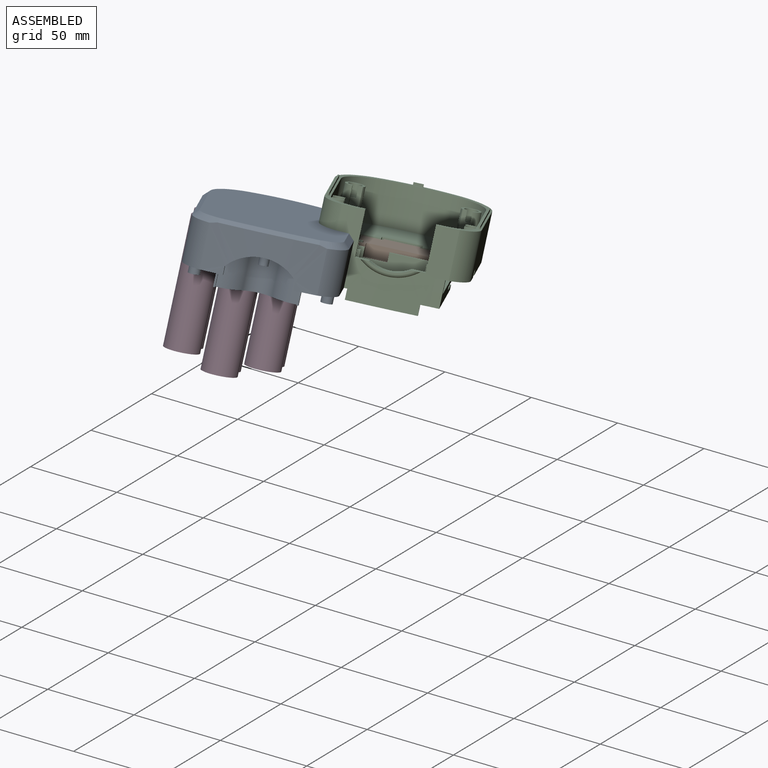
[diagram: assembled view]
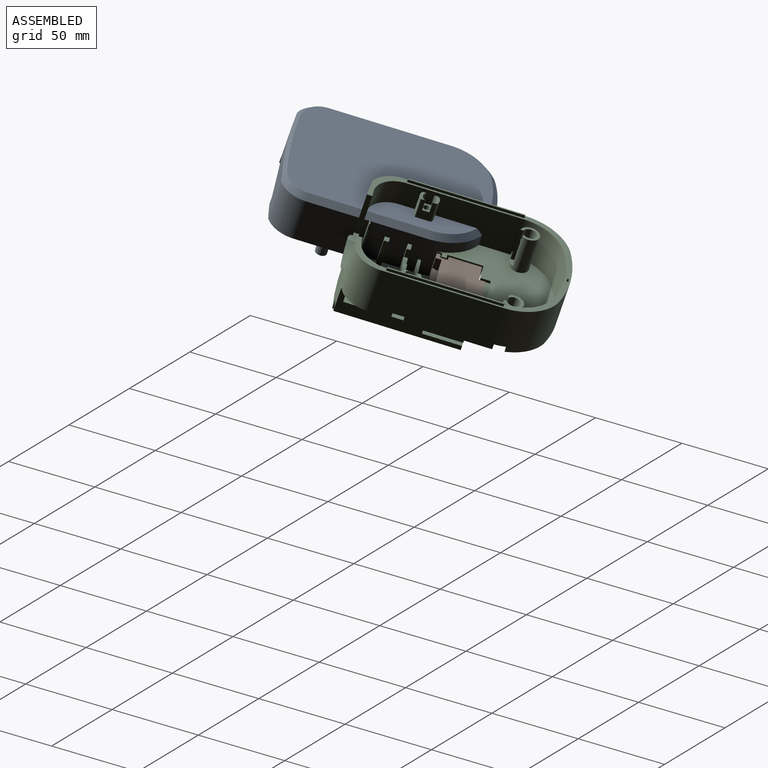
[diagram: assembled view, second angle]
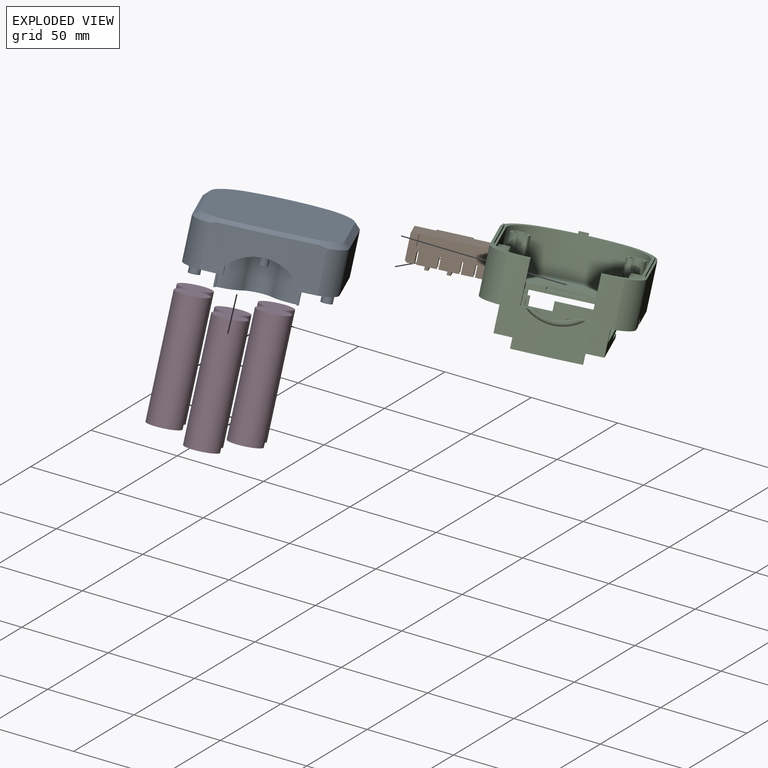
[diagram: exploded view]
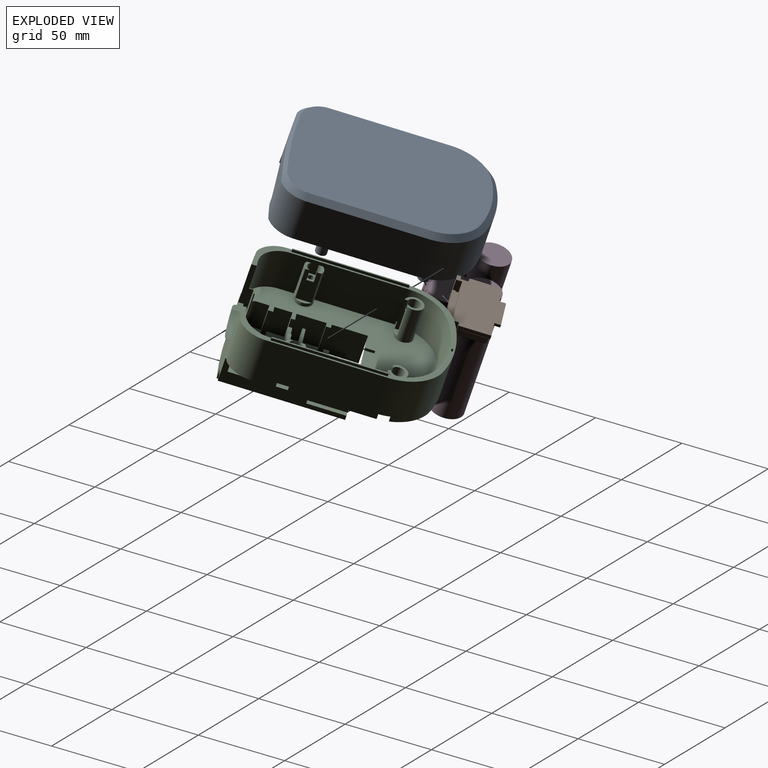
[diagram: exploded view, second angle]
FCSTD DOCUMENT  (FreeCAD 1.2R45528 (Git))
Label: Case
License: All rights reserved
LicenseURL: https://en.wikipedia.org/wiki/All_rights_reserved
objects: Sketcher::SketchObject×45, PartDesign::Pad×32, PartDesign::Pocket×26, App::Point×9, PartDesign::Body×7, PartDesign::Mirrored×6, App::FeaturePython×6, PartDesign::Fillet×5, PartDesign::Chamfer×4, App::Link×4, PartDesign::FeatureBase×3, PartDesign::Hole×2, PartDesign::SubShapeBinder×2, Measure::MeasureArea×2, Image::ImagePlane×1, PartDesign::LinearPattern×1, PartDesign::MultiTransform×1, App::Part×1, Part::DatumPlane×1, Assembly::JointGroup×1, +2 more types
note: 328 computed .brp shape members not serialized (recipe doc carries the construction recipe); baked Part::Feature solids carry a one-line shape summary decoded from their .brp

FEATURE [App::Point] Origin001
  Role = Origin
FEATURE [Sketcher::SketchObject] Sketch
  ArcFitTolerance = 1e-06
  AttachmentSupport = -> [Origin]
  ExternalTypes = [0]
  FullyConstrained = true
  MakeInternals = false
  MapMode = 5
  sketch-geometry (12):
    g0: LineSegment StartX=38.25 StartY=16.5 StartZ=0 EndX=38.25 EndY=77 EndZ=0
    g1: LineSegment StartX=-38.25 StartY=77 StartZ=0 EndX=-38.25 EndY=16.5 EndZ=0
    g2: ArcOfCircle CenterX=-11.375 CenterY=77 CenterZ=0 NormalX=0 NormalY=0 NormalZ=1 AngleXU=0 Radius=26.875 StartAngle=1.97219 EndAngle=3.14159
    g3: ArcOfCircle CenterX=11.375 CenterY=77 CenterZ=0 NormalX=0 NormalY=0 NormalZ=1 AngleXU=0 Radius=26.875 StartAngle=1e-16 EndAngle=1.16941
    g4: LineSegment [constr] StartX=-21.875 StartY=101.739 StartZ=0 EndX=21.875 EndY=101.739 EndZ=0
    g5: GeomPoint [constr] X=0 Y=101.739 Z=0
    g6: ArcOfCircle CenterX=2.4e-15 CenterY=37.3535 CenterZ=0 NormalX=0 NormalY=0 NormalZ=1 AngleXU=0 Radius=68 StartAngle=1.24328 EndAngle=1.89831
    g7: ArcOfCircle CenterX=-23.25 CenterY=16.5 CenterZ=0 NormalX=0 NormalY=0 NormalZ=1 AngleXU=0 Radius=15 StartAngle=3.14159 EndAngle=4.34518
    g8: ArcOfCircle CenterX=23.25 CenterY=16.5 CenterZ=0 NormalX=0 NormalY=0 NormalZ=1 AngleXU=0 Radius=15 StartAngle=5.0796 EndAngle=6.28319
    g9: LineSegment [constr] StartX=-28.6352 StartY=2.5 StartZ=0 EndX=28.6352 EndY=2.5 EndZ=0
    g10: GeomPoint [constr] X=0 Y=2.5 Z=0
    g11: ArcOfCircle CenterX=1.29e-14 CenterY=260.918 CenterZ=0 NormalX=0 NormalY=0 NormalZ=1 AngleXU=0 Radius=260 StartAngle=4.60203 EndAngle=4.82275
  constraints (32):
    c: Vertical(g0)
    c: Horizontal(g0,g1)
    c: Parallel(g1,g0)
    c: Distance(g1,g0) = 76.5
    c: Tangent(g3,g0) = -1.5708
    c: Tangent(g2,g1) = -1.5708
    c: Horizontal(g2,g3)
    c: Symmetric(g1,g0,g-2)
    c: DistanceY(g-1,g1) = 77
    c: Coincident(g4,g2)
    c: Coincident(g4,g3)
    c: Symmetric(g4,g4,g5)
    c: PointOnObject(g5,g-2)
    c: Coincident(g6,g2)
    c: Coincident(g6,g3)
    c: DistanceX(g4,g4) = 43.75
    c: DistanceX(g2,g3) = 22.75
    c: Radius(g6) = 68
    c: DistanceY(g-1,g1) = 16.5
    c: Tangent(g7,g1) = -1.5708
    c: Coincident(g8,g0)
    c: Equal(g8,g7)
    c: Horizontal(g7,g8)
    c: Coincident(g9,g7)
    c: Coincident(g9,g8)
    c: Symmetric(g9,g9,g10)
    c: PointOnObject(g10,g-2)
    c: Coincident(g11,g7)
    c: Coincident(g11,g8)
    c: Radius(g7) = 15
    c: DistanceY(g-1,g7) = 2.5
    c: Radius(g11) = 260
FEATURE [PartDesign::Pad] Pad
  Direction = (0,0,1)
  Length = 33
  Length2 = 10
  Profile = -> Sketch
  ReferenceAxis = -> Sketch [N_Axis]
  Refine = true
  SideType = 0
  Suppressed = false
  Type = 0
  Type2 = 0
FEATURE [PartDesign::Body] Body  label="Base Shape"
  AllowCompound = false
  Group = -> [Sketch,Pad]
  Origin = -> Origin
  Tip = -> Pad
FEATURE [Image::ImagePlane] Scanned_Document  label="Scanned Document"
  Placement = pos=(59.4423,-27.2508,0) rot=(0,0,-1;0.020944rad)
  XSize = 216.461
  YSize = 297.811
FEATURE [App::Point] Origin003
  Role = Origin
FEATURE [PartDesign::FeatureBase] Clone
  BaseFeature = -> Body
  Suppressed = false
FEATURE [Sketcher::SketchObject] Sketch001
  ArcFitTolerance = 1e-06
  AttachmentSupport = -> [Clone]
  ExternalGeometry = -> [Clone]
  ExternalTypes = [0]
  FullyConstrained = true
  MakeInternals = false
  MapMode = 5
  Placement = pos=(0,0,0) rot=(1,0,0;3.14159rad)
  sketch-geometry (7):
    g0: LineSegment StartX=-19.75 StartY=-4.16832 StartZ=0 EndX=19.75 EndY=-4.16832 EndZ=0
    g1: LineSegment StartX=19.75 StartY=-4.16832 StartZ=0 EndX=19.75 EndY=-6.36832 EndZ=0
    g2: ArcOfCircle CenterX=19.75 CenterY=-22.1695 CenterZ=0 NormalX=0 NormalY=0 NormalZ=1 AngleXU=0 Radius=15.8011 StartAngle=1.5708 EndAngle=2.49201
    g3: ArcOfCircle CenterX=0 CenterY=-7.16832 CenterZ=0 NormalX=0 NormalY=0 NormalZ=1 AngleXU=0 Radius=9 StartAngle=3.79118 EndAngle=5.6336
    g4: ArcOfCircle CenterX=-19.75 CenterY=-22.1695 CenterZ=0 NormalX=0 NormalY=0 NormalZ=1 AngleXU=0 Radius=15.8011 StartAngle=0.649586 EndAngle=1.5708
    g5: LineSegment StartX=-19.75 StartY=-6.36832 StartZ=0 EndX=-19.75 EndY=-4.16832 EndZ=0
    g6: GeomPoint X=0 Y=-16.1683 Z=0
  constraints (20):
    c: Horizontal(g0)
    c: Coincident(g0,g1)
    c: Vertical(g1)
    c: Perpendicular(g1,g2) = 4.71239
    c: Tangent(g2,g3) = 1.5708
    c: Tangent(g3,g4) = 1.5708
    c: Coincident(g4,g5)
    c: Coincident(g5,g0)
    c: Vertical(g5)
    c: Perpendicular(g4,g5)
    c: Radius(g3) = 9
    c: PointOnObject(g3,g-2)
    c: Equal(g2,g4)
    c: DistanceX(g0,g0) = 39.5
    c: Equal(g1,g5)
    c: DistanceY(g1,g1) = 2.2
    c: PointOnObject(g6,g3)
    c: PointOnObject(g6,g-2)
    c: Distance(g6,g0) = 12
    c: Distance(g-3,g0) = 3.25
FEATURE [PartDesign::Pocket] Pocket
  BaseFeature = -> Clone
  Direction = (0,0,1)
  Length = 30
  Length2 = 5
  Offset = -2
  Profile = -> Sketch001
  ReferenceAxis = -> Sketch001 [N_Axis]
  Refine = true
  SideType = 0
  Suppressed = false
  Type = 0
  Type2 = 0
FEATURE [Sketcher::SketchObject] Sketch002
  ArcFitTolerance = 1e-06
  AttachmentSupport = -> [Pocket]
  ExternalGeometry = -> [Pocket]
  ExternalTypes = [0]
  FullyConstrained = true
  MakeInternals = false
  MapMode = 5
  Placement = pos=(0,0,0) rot=(1,0,0;3.14159rad)
  sketch-geometry (12):
    g0: LineSegment StartX=-35.25 StartY=-18.6683 StartZ=0 EndX=-35.25 EndY=-77 EndZ=0
    g1: ArcOfCircle CenterX=-12.045 CenterY=-77 CenterZ=0 NormalX=0 NormalY=0 NormalZ=1 AngleXU=0 Radius=23.205 StartAngle=3.14159 EndAngle=4.35935
    g2: ArcOfCircle CenterX=0 CenterY=-44.3109 CenterZ=0 NormalX=0 NormalY=0 NormalZ=1 AngleXU=0 Radius=58.0426 StartAngle=4.35935 EndAngle=5.06542
    g3: ArcOfCircle CenterX=12.045 CenterY=-77 CenterZ=0 NormalX=0 NormalY=0 NormalZ=1 AngleXU=0 Radius=23.205 StartAngle=5.06542 EndAngle=6.28319
    g4: LineSegment StartX=35.25 StartY=-77 StartZ=0 EndX=35.25 EndY=-18.6683 EndZ=0
    g5: ArcOfCircle CenterX=20.75 CenterY=-18.6683 CenterZ=0 NormalX=0 NormalY=0 NormalZ=1 AngleXU=0 Radius=14.5 StartAngle=0 EndAngle=1.5708
    g6: LineSegment StartX=20.75 StartY=-4.16832 StartZ=0 EndX=20.75 EndY=-7.36832 EndZ=0
    g7: ArcOfCircle CenterX=20.75 CenterY=-24.0445 CenterZ=0 NormalX=0 NormalY=0 NormalZ=1 AngleXU=0 Radius=16.6761 StartAngle=1.5708 EndAngle=2.45326
    g8: ArcOfCircle CenterX=0 CenterY=-6.97699 CenterZ=0 NormalX=0 NormalY=0 NormalZ=1 AngleXU=0 Radius=10.1913 StartAngle=3.82992 EndAngle=5.59486
    g9: ArcOfCircle CenterX=-20.75 CenterY=-24.0445 CenterZ=0 NormalX=0 NormalY=0 NormalZ=1 AngleXU=0 Radius=16.6761 StartAngle=0.688328 EndAngle=1.5708
    g10: LineSegment StartX=-20.75 StartY=-7.36832 StartZ=0 EndX=-20.75 EndY=-4.16832 EndZ=0
    g11: ArcOfCircle CenterX=-20.75 CenterY=-18.6683 CenterZ=0 NormalX=0 NormalY=0 NormalZ=1 AngleXU=0 Radius=14.5 StartAngle=1.5708 EndAngle=3.14159
  constraints (33):
    c: Vertical(g0)
    c: Tangent(g0,g1) = -1.5708
    c: Tangent(g1,g2) = -1.5708
    c: Tangent(g2,g3) = -1.5708
    c: Tangent(g3,g4) = -1.5708
    c: Tangent(g4,g5) = -1.5708
    c: Coincident(g5,g6)
    c: Vertical(g6)
    c: Perpendicular(g6,g7) = 4.71239
    c: Tangent(g7,g8) = 1.5708
    c: Tangent(g8,g9) = 1.5708
    c: Perpendicular(g9,g10) = 4.71239
    c: Perpendicular(g10,g11) = 1.5708
    c: Tangent(g11,g0) = -1.5708
    c: Vertical(g4)
    c: Equal(g0,g4)
    c: PointOnObject(g2,g-2)
    c: PointOnObject(g8,g-2)
    c: Horizontal(g7,g8)
    c: Vertical(g10)
    c: Equal(g9,g7)
    c: Horizontal(g10,g5)
    c: Equal(g5,g11)
    c: Distance(g-3,g4) = 3
    c: Distance(g2,g-7) = 3
    c: Distance(g-10,g0) = 3
    c: Distance(g6,g-12) = 1
    c: Horizontal(g10,g-16)
    c: DistanceY(g9,g-16) = 1
    c: Distance(g8,g-14) = 1
    c: Distance(g-13,g7) = -1.25
    c: Horizontal(g0,g-10)
    c: Distance(g1,g-9) = 0.67
FEATURE [PartDesign::Pocket] Pocket001
  BaseFeature = -> Pocket
  Direction = (0,0,1)
  Length = 5
  Length2 = 5
  Profile = -> Sketch002
  ReferenceAxis = -> Sketch002 [N_Axis]
  Refine = true
  SideType = 0
  Suppressed = false
  Type = 3
  Type2 = 0
  UpToFace = -> Pocket [Face17]
FEATURE [Sketcher::SketchObject] Sketch003
  ArcFitTolerance = 1e-06
  AttachmentSupport = -> [Pocket001]
  ExternalGeometry = -> [Pocket001]
  ExternalTypes = [0,0]
  FullyConstrained = true
  MakeInternals = false
  MapMode = 5
  Placement = pos=(0,0,30) rot=(1,0,0;3.14159rad)
  sketch-geometry (8):
    g0: Circle CenterX=-32.25 CenterY=-31.1683 CenterZ=0 NormalX=0 NormalY=0 NormalZ=1 AngleXU=0 Radius=3
    g1: Circle CenterX=-28.25 CenterY=-81.5097 CenterZ=0 NormalX=0 NormalY=0 NormalZ=1 AngleXU=0 Radius=3
    g2: Circle CenterX=28.25 CenterY=-81.5097 CenterZ=0 NormalX=0 NormalY=0 NormalZ=1 AngleXU=0 Radius=3
    g3: Circle CenterX=32.25 CenterY=-31.1683 CenterZ=0 NormalX=0 NormalY=0 NormalZ=1 AngleXU=0 Radius=3
    g4: GeomPoint X=0 Y=-31.1683 Z=0
    g5: GeomPoint X=0 Y=-81.5097 Z=0
    g6: LineSegment [constr] StartX=19.75 StartY=-4.16832 StartZ=0 EndX=19.75 EndY=-34.1683 EndZ=0
    g7: LineSegment [constr] StartX=32.25 StartY=-34.1683 StartZ=0 EndX=19.75 EndY=-34.1683 EndZ=0
  constraints (19):
    c: Horizontal(g0,g3)
    c: Horizontal(g2,g1)
    c: Equal(g1,g0)
    c: Equal(g0,g3)
    c: Equal(g3,g2)
    c: Diameter(g2) = 6
    c: Distance(g3,g0) = 58.5
    c: PointOnObject(g4,g-2)
    c: Symmetric(g0,g3,g4)
    c: Distance(g1,g0) = 44.5
    c: PointOnObject(g5,g-2)
    c: Symmetric(g1,g2,g5)
    c: Distance(g1,g2) = 50.5
    c: Coincident(g6,g-25)
    c: Vertical(g6)
    c: Tangent(g7,g3) = 1.5708
    c: Coincident(g7,g6)
    c: Horizontal(g7)
    c: DistanceY(g6,g6) = 30
FEATURE [PartDesign::Pad] Pad001
  BaseFeature = -> Pocket001
  Direction = (0,0,-1)
  Length = 30
  Length2 = 10
  Profile = -> Sketch003
  ReferenceAxis = -> Sketch003 [N_Axis]
  Refine = true
  SideType = 0
  Suppressed = false
  Type = 0
  Type2 = 0
FEATURE [Sketcher::SketchObject] Sketch004
  ArcFitTolerance = 1e-06
  AttachmentSupport = -> [Pad001]
  ExternalGeometry = -> [Pad001]
  ExternalTypes = [0,0,0]
  FullyConstrained = true
  MakeInternals = false
  MapMode = 5
  Placement = pos=(0,0,0) rot=(1,0,0;3.14159rad)
  sketch-geometry (5):
    g0: LineSegment StartX=-31.0784 StartY=-80.5097 StartZ=0 EndX=-34.9831 EndY=-80.5097 EndZ=0
    g1: LineSegment StartX=-34.9831 StartY=-80.5097 StartZ=0 EndX=-34.9831 EndY=-82.5097 EndZ=0
    g2: LineSegment StartX=-34.9831 StartY=-82.5097 StartZ=0 EndX=-31.0784 EndY=-82.5097 EndZ=0
    g3: LineSegment StartX=-31.0784 StartY=-82.5097 StartZ=0 EndX=-31.0784 EndY=-80.5097 EndZ=0
    g4: GeomPoint X=-31.0784 Y=-81.5097 Z=0
  constraints (13):
    c: Coincident(g0,g1)
    c: Coincident(g1,g2)
    c: Coincident(g2,g3)
    c: Coincident(g3,g0)
    c: Horizontal(g0)
    c: Horizontal(g2)
    c: Vertical(g1)
    c: Vertical(g3)
    c: PointOnObject(g0,g-3)
    c: PointOnObject(g0,g-29)
    c: PointOnObject(g2,g-3)
    c: Symmetric(g3,g3,g4)
    c: DistanceY(g3,g3) = 2
FEATURE [PartDesign::Pad] Pad002
  BaseFeature = -> Pad001
  Direction = (0,0,-1)
  Length = 10
  Length2 = 10
  Profile = -> Sketch004
  ReferenceAxis = -> Sketch004 [N_Axis]
  Refine = true
  SideType = 0
  Suppressed = false
  Type = 3
  Type2 = 0
  UpToFace = -> Pad001 [Face28]
FEATURE [PartDesign::Mirrored] Mirrored
  BaseFeature = -> Pad002
  MirrorPlane = -> Sketch004 [V_Axis]
  Originals = -> [Pad002]
  Refine = true
  Suppressed = false
  TransformMode = 0
FEATURE [Sketcher::SketchObject] Sketch005
  ArcFitTolerance = 1e-06
  AttachmentSupport = -> [Mirrored]
  ExternalGeometry = -> [Mirrored]
  ExternalTypes = [0,0,0]
  FullyConstrained = false
  MakeInternals = false
  MapMode = 5
  Placement = pos=(0,0,0) rot=(1,0,0;3.14159rad)
  sketch-geometry (12):
    g0: LineSegment StartX=-54.6573 StartY=0 StartZ=0 EndX=-54.6573 EndY=-111 EndZ=0
    g1: LineSegment StartX=-54.6573 StartY=-111 StartZ=0 EndX=54.6573 EndY=-111 EndZ=0
    g2: LineSegment StartX=54.6573 StartY=-111 StartZ=0 EndX=54.6573 EndY=0 EndZ=0
    g3: LineSegment StartX=54.6573 StartY=0 StartZ=0 EndX=-54.6573 EndY=0 EndZ=0
    g4: Circle CenterX=-32.25 CenterY=-31.1683 CenterZ=0 NormalX=0 NormalY=0 NormalZ=1 AngleXU=0 Radius=3
    g5: Circle CenterX=28.25 CenterY=-81.5097 CenterZ=0 NormalX=0 NormalY=0 NormalZ=1 AngleXU=0 Radius=3
    g6: Circle CenterX=-28.25 CenterY=-81.5097 CenterZ=0 NormalX=0 NormalY=0 NormalZ=1 AngleXU=0 Radius=3
    g7: Circle CenterX=32.25 CenterY=-31.1683 CenterZ=0 NormalX=0 NormalY=0 NormalZ=1 AngleXU=0 Radius=3
    g8: LineSegment StartX=20.75 StartY=-4.16832 StartZ=0 EndX=-20.75 EndY=-4.16832 EndZ=0
    g9: LineSegment StartX=-20.75 StartY=-4.16832 StartZ=0 EndX=-20.75 EndY=-18.1683 EndZ=0
    g10: LineSegment StartX=-20.75 StartY=-18.1683 StartZ=0 EndX=20.75 EndY=-18.1683 EndZ=0
    g11: LineSegment StartX=20.75 StartY=-18.1683 StartZ=0 EndX=20.75 EndY=-4.16832 EndZ=0
  constraints (29):
    c: Coincident(g0,g1)
    c: Coincident(g1,g2)
    c: Coincident(g2,g3)
    c: Coincident(g3,g0)
    c: Vertical(g0)
    c: Vertical(g2)
    c: Horizontal(g1)
    c: Horizontal(g3)
    c: Symmetric(g3,g3,g-1)
    c: DistanceY(g2,g2) = 111
    c: Coincident(g4,g-41)
    c: PointOnObject(g-41,g4)
    c: Coincident(g5,g-21)
    c: PointOnObject(g-21,g5)
    c: Coincident(g6,g-28)
    c: PointOnObject(g-28,g6)
    c: Coincident(g7,g-42)
    c: PointOnObject(g-18,g7)
    c: Coincident(g8,g9)
    c: Coincident(g9,g10)
    c: Coincident(g10,g11)
    c: Coincident(g11,g8)
    c: Horizontal(g8)
    c: Horizontal(g10)
    c: Vertical(g9)
    c: Vertical(g11)
    c: Coincident(g8,g-16)
    c: PointOnObject(g-33,g9)
    c: Distance(g-13,g10) = 1
FEATURE [PartDesign::Pocket] Pocket002
  BaseFeature = -> Mirrored
  Direction = (0,0,1)
  Length = 7
  Length2 = 5
  Profile = -> Sketch005
  ReferenceAxis = -> Sketch005 [N_Axis]
  Refine = true
  SideType = 0
  Suppressed = false
  Type = 0
  Type2 = 0
FEATURE [PartDesign::Chamfer] Chamfer
  Angle = 45
  Base = -> Pocket002 [Edge33]
  BaseFeature = -> Pocket002
  ChamferType = 0
  FlipDirection = false
  Refine = true
  Size = 3
  Size2 = 1
  SupportTransform = false
  Suppressed = false
  UseAllEdges = false
FEATURE [PartDesign::Chamfer] Chamfer001
  Angle = 45
  Base = -> Chamfer [Edge44]
  BaseFeature = -> Chamfer
  ChamferType = 0
  FlipDirection = false
  Refine = true
  Size = 2
  Size2 = 1
  SupportTransform = false
  Suppressed = false
  UseAllEdges = false
FEATURE [Sketcher::SketchObject] Sketch006
  ArcFitTolerance = 1e-06
  AttachmentSupport = -> [Chamfer001]
  ExternalGeometry = -> [Chamfer001]
  ExternalTypes = [0]
  FullyConstrained = true
  MakeInternals = false
  MapMode = 5
  Placement = pos=(0,0,30) rot=(1,0,0;3.14159rad)
  sketch-geometry (1):
    g0: Circle CenterX=-1.974e-13 CenterY=-12.612 CenterZ=0 NormalX=0 NormalY=0 NormalZ=1 AngleXU=0 Radius=2.5
  constraints (2):
    c: Diameter(g0) = 5
    c: Symmetric(g-6,g-7,g0)
FEATURE [PartDesign::Pad] Pad003
  BaseFeature = -> Chamfer001
  Direction = (0,0,-1)
  Length = 12
  Length2 = 10
  Profile = -> Sketch006
  ReferenceAxis = -> Sketch006 [N_Axis]
  Refine = true
  SideType = 0
  Suppressed = false
  Type = 0
  Type2 = 0
FEATURE [PartDesign::Fillet] Fillet
  Base = -> Pad003 [Edge144,Edge121,Edge86]
  BaseFeature = -> Pad003
  Radius = 1
  Refine = true
  SupportTransform = false
  Suppressed = false
  UseAllEdges = false
FEATURE [PartDesign::Hole] Hole
  BaseFeature = -> Fillet
  BaseProfileType = 7
  CustomThreadClearance = 0
  Depth = 17
  DepthType = 0
  Diameter = 2.5
  DrillForDepth = false
  DrillPoint = 1
  DrillPointAngle = 118
  HoleCutCountersinkAngle = 90
  HoleCutCustomValues = false
  HoleCutDepth = 0
  HoleCutDiameter = 0
  HoleCutType = 0
  ModelThread = false
  Profile = -> Fillet [Face46,Face26,Face40,Face45]
  Refine = true
  Suppressed = false
  Tapered = false
  TaperedAngle = 90
  ThreadClass = 0
  ThreadDepth = 17
  ThreadDepthType = 0
  ThreadDiameter = 3
  ThreadDirection = 0
  ThreadFit = 0
  ThreadSize = 9
  ThreadType = 1
  Threaded = true
  UseCustomThreadClearance = false
FEATURE [App::Point] Origin005  label="Origin006"
  Role = Origin
FEATURE [Sketcher::SketchObject] Sketch007
  ArcFitTolerance = 1e-06
  AttachmentSupport = -> [Origin004]
  ExternalTypes = [0]
  FullyConstrained = true
  MakeInternals = false
  MapMode = 5
  Placement = pos=(0,0,0) rot=(0.57735,0.57735,0.57735;2.0944rad)
  sketch-geometry (1):
    g0: Circle CenterX=0 CenterY=0 CenterZ=0 NormalX=0 NormalY=0 NormalZ=1 AngleXU=0 Radius=9
  constraints (2):
    c: Diameter(g0) = 18
    c: Coincident(g0,g-1)
FEATURE [PartDesign::Pad] Pad004
  Direction = (1,0,0)
  Length = 65
  Length2 = 10
  Profile = -> Sketch007
  ReferenceAxis = -> Sketch007 [N_Axis]
  Refine = true
  SideType = 0
  Suppressed = false
  Type = 0
  Type2 = 0
FEATURE [PartDesign::LinearPattern] Linear_Pattern
  Direction = -> Sketch007 [V_Axis]
  Direction2 = -> Sketch007 [H_Axis]
  Length = 18
  Length2 = 100
  Mode = 1
  Mode2 = 0
  Occurrences = 2
  Occurrences2 = 1
  Offset = 18
  Offset2 = 100
  Refine = true
  Reversed2 = false
  SpacingPattern = [18]
  SpacingPattern2 = [0]
  Spacings = [-1]
  Suppressed = false
  TransformMode = 0
FEATURE [PartDesign::MultiTransform] MultiTransform
  BaseFeature = -> Pad004
  Originals = -> [Pad004]
  Refine = true
  Suppressed = false
  TransformMode = 0
  Transformations = -> [Linear_Pattern]
FEATURE [PartDesign::Body] Body002  label="Body"
  AllowCompound = true
  Group = -> [Sketch007,Pad004,MultiTransform,Linear_Pattern]
  Origin = -> Origin004
  Tip = -> MultiTransform
FEATURE [App::Point] Origin007  label="Origin009"
  Role = Origin
FEATURE [App::Point] Origin009  label="Origin011"
  Role = Origin
FEATURE [PartDesign::FeatureBase] Clone001
  BaseFeature = -> Body002
  Suppressed = false
FEATURE [PartDesign::Body] Body003
  AllowCompound = false
  Group = -> [Clone001]
  Origin = -> Origin008
  Placement = pos=(7,19.75,0) rot=(0,0,1;0rad)
  Tip = -> Clone001
FEATURE [App::Point] Origin011  label="Origin014"
  Role = Origin
FEATURE [PartDesign::FeatureBase] Clone002
  BaseFeature = -> Body002
  Suppressed = false
FEATURE [PartDesign::Body] Body004
  AllowCompound = false
  Group = -> [Clone002]
  Origin = -> Origin010
  Placement = pos=(0,39.5,0) rot=(0,0,1;0rad)
  Tip = -> Clone002
FEATURE [App::Part] Part  label="3S2P"
  Group = -> [Body002,Body003,Body004]
  Origin = -> Origin006
  Placement = pos=(19.75,12.5,3) rot=(0,0,1;1.5708rad)
FEATURE [Sketcher::SketchObject] Sketch008
  ArcFitTolerance = 1e-06
  AttachmentSupport = -> [Hole]
  ExternalGeometry = -> [Hole]
  ExternalTypes = [0,0]
  FullyConstrained = true
  MakeInternals = false
  MapMode = 5
  Placement = pos=(0,4.16832,0) rot=(0,0.707107,0.707107;3.14159rad)
  sketch-geometry (6):
    g0: ArcOfCircle CenterX=2.7e-15 CenterY=-3.37405 CenterZ=0 NormalX=0 NormalY=0 NormalZ=1 AngleXU=0 Radius=22.6741 StartAngle=0.709671 EndAngle=2.43192
    g1: GeomPoint X=0 Y=11.4 Z=0
    g2: LineSegment StartX=-17.2 StartY=11.4 StartZ=0 EndX=-17.2 EndY=7 EndZ=0
    g3: LineSegment StartX=-17.2 StartY=7 StartZ=0 EndX=17.2 EndY=7 EndZ=0
    g4: LineSegment StartX=17.2 StartY=7 StartZ=0 EndX=17.2 EndY=11.4 EndZ=0
    g5: GeomPoint X=0 Y=19.3 Z=0
  constraints (16):
    c: Horizontal(g0,g0)
    c: PointOnObject(g1,g-2)
    c: Symmetric(g0,g0,g1)
    c: Coincident(g0,g2)
    c: PointOnObject(g2,g-4)
    c: Vertical(g2)
    c: Coincident(g2,g3)
    c: PointOnObject(g3,g-4)
    c: Coincident(g3,g4)
    c: Coincident(g4,g0)
    c: Vertical(g4)
    c: DistanceX(g3,g3) = 34.4
    c: DistanceY(g4,g4) = 4.4
    c: PointOnObject(g5,g0)
    c: PointOnObject(g5,g-2)
    c: Distance(g5,g-3) = 1.3
FEATURE [PartDesign::Pocket] Pocket003
  BaseFeature = -> Hole
  Direction = (0,-1,2e-16)
  Length = 5
  Length2 = 5
  Profile = -> Sketch008
  ReferenceAxis = -> Sketch008 [N_Axis]
  Refine = true
  SideType = 0
  Suppressed = false
  Type = 0
  Type2 = 0
FEATURE [Sketcher::SketchObject] Sketch009
  ArcFitTolerance = 1e-06
  AttachmentSupport = -> [Pocket003]
  ExternalGeometry = -> [Pocket003]
  ExternalTypes = [0]
  FullyConstrained = true
  MakeInternals = false
  MapMode = 5
  Placement = pos=(0,0,7) rot=(1,0,0;3.14159rad)
  sketch-geometry (17):
    g0: LineSegment StartX=-37.375 StartY=-18.6683 StartZ=0 EndX=-37.375 EndY=-77 EndZ=0
    g1: LineSegment StartX=-37.375 StartY=-77 StartZ=0 EndX=-36.125 EndY=-77 EndZ=0
    g2: LineSegment StartX=-36.125 StartY=-77 StartZ=0 EndX=-36.125 EndY=-18.6683 EndZ=0
    g3: LineSegment StartX=-36.125 StartY=-18.6683 StartZ=0 EndX=-37.375 EndY=-18.6683 EndZ=0
    g4: LineSegment StartX=36.125 StartY=-18.6683 StartZ=0 EndX=36.125 EndY=-77 EndZ=0
    g5: LineSegment StartX=36.125 StartY=-77 StartZ=0 EndX=37.375 EndY=-77 EndZ=0
    g6: LineSegment StartX=37.375 StartY=-77 StartZ=0 EndX=37.375 EndY=-18.6683 EndZ=0
    g7: LineSegment StartX=37.375 StartY=-18.6683 StartZ=0 EndX=36.125 EndY=-18.6683 EndZ=0
    g8: LineSegment StartX=-2.5 StartY=-103.229 StartZ=0 EndX=-2.5 EndY=-104.479 EndZ=0
    g9: LineSegment StartX=-2.5 StartY=-104.479 StartZ=0 EndX=2.5 EndY=-104.479 EndZ=0
    g10: LineSegment StartX=2.5 StartY=-104.479 StartZ=0 EndX=2.5 EndY=-103.229 EndZ=0
    g11: LineSegment StartX=2.5 StartY=-103.229 StartZ=0 EndX=-2.5 EndY=-103.229 EndZ=0
    g12: GeomPoint X=36.75 Y=-77 Z=0
    g13: GeomPoint X=-36.75 Y=-77 Z=0
    g14: GeomPoint X=-2.7e-15 Y=-103.854 Z=0
    g15: GeomPoint X=0 Y=-102.354 Z=0
    g16: GeomPoint X=-5.3e-15 Y=-105.354 Z=0
  constraints (39):
    c: Coincident(g0,g1)
    c: Coincident(g1,g2)
    c: Coincident(g2,g3)
    c: Coincident(g3,g0)
    c: Vertical(g0)
    c: Vertical(g2)
    c: Horizontal(g1)
    c: Horizontal(g3)
    c: Coincident(g4,g5)
    c: Coincident(g5,g6)
    c: Coincident(g6,g7)
    c: Coincident(g7,g4)
    c: Vertical(g4)
    c: Vertical(g6)
    c: Horizontal(g5)
    c: Horizontal(g7)
    c: Coincident(g8,g9)
    c: Coincident(g9,g10)
    c: Coincident(g10,g11)
    c: Coincident(g11,g8)
    c: Vertical(g8)
    c: Vertical(g10)
    c: Horizontal(g9)
    c: Symmetric(g8,g10,g-2)
    c: DistanceY(g8,g8) = 1.25
    c: DistanceX(g11,g11) = 5
    c: Equal(g1,g8)
    c: Equal(g8,g5)
    c: Symmetric(g5,g5,g12)
    c: Symmetric(g-10,g-33,g12)
    c: Horizontal(g4,g-9)
    c: Horizontal(g-23,g2)
    c: Symmetric(g1,g1,g13)
    c: Symmetric(g-22,g-30,g13)
    c: PointOnObject(g15,g-2)
    c: PointOnObject(g16,g-31)
    c: PointOnObject(g15,g-16)
    c: Symmetric(g15,g16,g14)
    c: Symmetric(g8,g9,g14)
FEATURE [PartDesign::Pocket] Pocket004
  BaseFeature = -> Pocket003
  Direction = (0,0,1)
  Length = 3
  Length2 = 5
  Profile = -> Sketch009
  ReferenceAxis = -> Sketch009 [N_Axis]
  Refine = true
  SideType = 0
  Suppressed = false
  Type = 0
  Type2 = 0
FEATURE [Part::DatumPlane] DatumPlane
  AttachmentOffset = pos=(0,0,30) rot=(0,0,1;0rad)
  AttachmentSupport = -> [Pocket004]
  MapMode = 5
  Placement = pos=(0,34.1683,-6.7e-15) rot=(0,0.707107,0.707107;3.14159rad)
FEATURE [Sketcher::SketchObject] Sketch010
  ArcFitTolerance = 1e-06
  AttachmentSupport = -> [DatumPlane]
  ExternalGeometry = -> [Pocket004]
  ExternalTypes = [0]
  FullyConstrained = true
  MakeInternals = false
  MapMode = 5
  Placement = pos=(0,34.1683,-6.7e-15) rot=(0,0.707107,0.707107;3.14159rad)
  sketch-geometry (12):
    g0: ArcOfCircle CenterX=-20 CenterY=21 CenterZ=0 NormalX=0 NormalY=0 NormalZ=1 AngleXU=0 Radius=10.0231 StartAngle=2.02655 EndAngle=3.07375
    g1: ArcOfCircle CenterX=-20 CenterY=21 CenterZ=0 NormalX=0 NormalY=0 NormalZ=1 AngleXU=0 Radius=10.0231 StartAngle=0.0678445 EndAngle=1.11504
    g2: ArcOfCircle CenterX=0 CenterY=21 CenterZ=0 NormalX=0 NormalY=0 NormalZ=1 AngleXU=0 Radius=10.0231 StartAngle=2.02655 EndAngle=3.07375
    g3: ArcOfCircle CenterX=0 CenterY=21 CenterZ=0 NormalX=0 NormalY=0 NormalZ=1 AngleXU=0 Radius=10.0231 StartAngle=0.0678445 EndAngle=1.11504
    g4: ArcOfCircle CenterX=20 CenterY=21 CenterZ=0 NormalX=0 NormalY=0 NormalZ=1 AngleXU=0 Radius=10.0231 StartAngle=2.02655 EndAngle=3.07375
    g5: ArcOfCircle CenterX=20 CenterY=21 CenterZ=0 NormalX=0 NormalY=0 NormalZ=1 AngleXU=0 Radius=10.0231 StartAngle=0.0678445 EndAngle=1.11504
    g6: LineSegment StartX=-15.5885 StartY=30 StartZ=0 EndX=-4.41154 EndY=30 EndZ=0
    g7: LineSegment StartX=4.41154 StartY=30 StartZ=0 EndX=15.5885 EndY=30 EndZ=0
    g8: LineSegment StartX=30 StartY=21.6795 StartZ=0 EndX=30 EndY=30 EndZ=0
    g9: LineSegment StartX=24.4115 StartY=30 StartZ=0 EndX=30 EndY=30 EndZ=0
    g10: LineSegment StartX=-30 StartY=21.6795 StartZ=0 EndX=-30 EndY=30 EndZ=0
    g11: LineSegment StartX=-24.4115 StartY=30 StartZ=0 EndX=-30 EndY=30 EndZ=0
  constraints (39):
    c: Angle(g0) = 1.0472
    c: PointOnObject(g0,g-3)
    c: Angle(g1) = 1.0472
    c: Coincident(g1,g0)
    c: PointOnObject(g1,g-3)
    c: PointOnObject(g2,g-2)
    c: PointOnObject(g2,g-3)
    c: Angle(g3) = 1.0472
    c: Coincident(g3,g2)
    c: PointOnObject(g3,g-3)
    c: Angle(g4) = 1.0472
    c: PointOnObject(g4,g-3)
    c: Angle(g5) = 1.0472
    c: Coincident(g5,g4)
    c: PointOnObject(g5,g-3)
    c: Horizontal(g4,g2)
    c: Horizontal(g2,g0)
    c: Horizontal(g0,g1)
    c: Horizontal(g2,g3)
    c: Horizontal(g4,g5)
    c: Coincident(g3,g4)
    c: Coincident(g2,g1)
    c: DistanceX(g0,g-1) = 20
    c: DistanceX(g-1,g4) = 20
    c: Distance(g2,g-3) = 9
    c: Coincident(g6,g1)
    c: Coincident(g6,g2)
    c: Coincident(g7,g3)
    c: Coincident(g7,g4)
    c: Coincident(g8,g5)
    c: PointOnObject(g8,g-3)
    c: Vertical(g8)
    c: Coincident(g9,g5)
    c: Coincident(g9,g8)
    c: Coincident(g10,g0)
    c: Vertical(g10)
    c: Coincident(g11,g0)
    c: Coincident(g11,g10)
    c: Horizontal(g11)
FEATURE [PartDesign::Pad] Pad005
  BaseFeature = -> Pocket004
  Direction = (0,1,0)
  Length = 20
  Length2 = 10
  Profile = -> Sketch010
  ReferenceAxis = -> Sketch010 [N_Axis]
  Refine = true
  SideType = 0
  Suppressed = false
  Type = 0
  Type2 = 0
FEATURE [PartDesign::Fillet] Fillet001
  Base = -> Pad005 [Edge136,Edge141,Edge146,Edge153]
  BaseFeature = -> Pad005
  Radius = 0.25
  Refine = true
  SupportTransform = false
  Suppressed = false
  UseAllEdges = false
FEATURE [App::Point] Origin013  label="Origin017"
  Role = Origin
FEATURE [PartDesign::SubShapeBinder] Binder
  BindCopyOnChange = 0
  BindMode = 0
  ClaimChildren = false
  Context = -> Body005 [Pad006.Binder.]
  Fuse = false
  MakeFace = true
  OffsetFill = false
  OffsetIntersection = false
  OffsetJoinType = 0
  OffsetOpenResult = false
  PartialLoad = false
  Refine = true
  Relative = true
  Support = -> [Body001[Fillet001.Face44,Fillet001.Face45,Fillet001.Face52,Fillet001.Face53,Fillet001.Face54]]
  _Version = 2
FEATURE [PartDesign::Pad] Pad006
  Direction = (0,0,-1)
  Length = 20
  Length2 = 10
  Profile = -> Binder [Face1]
  Refine = true
  SideType = 0
  Suppressed = false
  Type = 0
  Type2 = 0
FEATURE [Sketcher::SketchObject] Sketch011
  ArcFitTolerance = 1e-06
  AttachmentSupport = -> [Pad006]
  ExternalGeometry = -> [Pad006]
  ExternalTypes = [0]
  FullyConstrained = false
  MakeInternals = false
  MapMode = 5
  Placement = pos=(0,0,12) rot=(0,0,1;0rad)
  sketch-geometry (8):
    g0: LineSegment [constr] StartX=-37.1708 StartY=76.7716 StartZ=0 EndX=-37.1708 EndY=19.0291 EndZ=0
    g1: LineSegment [constr] StartX=-37.1708 StartY=19.0291 StartZ=0 EndX=-36.4564 EndY=19.0291 EndZ=0
    g2: LineSegment [constr] StartX=-36.4564 StartY=19.0291 StartZ=0 EndX=-36.4564 EndY=76.7716 EndZ=0
    g3: LineSegment [constr] StartX=-36.4564 StartY=76.7716 StartZ=0 EndX=-37.1708 EndY=76.7716 EndZ=0
    g4: GeomPoint X=-36.8136 Y=19.0291 Z=0
    g5: GeomPoint X=-36.75 Y=18.6683 Z=0
    g6: GeomPoint X=-36.125 Y=47.8342 Z=0
    g7: GeomPoint X=-36.4564 Y=47.9004 Z=0
  constraints (12):
    c: Coincident(g0,g1)
    c: Coincident(g1,g2)
    c: Coincident(g2,g3)
    c: Coincident(g3,g0)
    c: Vertical(g0)
    c: Vertical(g2)
    c: Horizontal(g1)
    c: Horizontal(g3)
    c: Symmetric(g1,g1,g4)
    c: Symmetric(g-32,g-32,g5)
    c: Symmetric(g-33,g-33,g6)
    c: Symmetric(g2,g2,g7)
FEATURE [PartDesign::Pad] Pad007
  BaseFeature = -> Pad006
  Direction = (0,0,1)
  Length = 2
  Length2 = 10
  Profile = -> Sketch011
  ReferenceAxis = -> Sketch011 [N_Axis]
  Refine = true
  SideType = 1
  Suppressed = false
  Type = 0
  Type2 = 3
  UpToFace2 = -> Pad006 [Face39]
FEATURE [Sketcher::SketchObject] Sketch012
  ArcFitTolerance = 1e-06
  AttachmentSupport = -> [Pad007]
  ExternalGeometry = -> [Pad007]
  ExternalTypes = [0]
  FullyConstrained = true
  MakeInternals = false
  MapMode = 5
  Placement = pos=(0,0,-8) rot=(1,0,0;3.14159rad)
  sketch-geometry (4):
    g0: ArcOfCircle CenterX=12.045 CenterY=-77 CenterZ=0 NormalX=0 NormalY=0 NormalZ=1 AngleXU=0 Radius=23.205 StartAngle=5.06542 EndAngle=6.13136
    g1: ArcOfCircle CenterX=-12.045 CenterY=-77 CenterZ=0 NormalX=0 NormalY=0 NormalZ=1 AngleXU=0 Radius=23.205 StartAngle=3.29342 EndAngle=4.35935
    g2: LineSegment StartX=-34.9831 StartY=-80.5097 StartZ=0 EndX=34.9831 EndY=-80.5097 EndZ=0
    g3: LineSegment StartX=20.0681 StartY=-98.7739 StartZ=0 EndX=-20.0681 EndY=-98.7739 EndZ=0
  constraints (10):
    c: Coincident(g0,g-14)
    c: Coincident(g0,g-10)
    c: Coincident(g1,g-20)
    c: Coincident(g1,g-20)
    c: PointOnObject(g1,g-15)
    c: PointOnObject(g0,g-15)
    c: Coincident(g1,g2)
    c: Coincident(g0,g3)
    c: Coincident(g1,g3)
    c: Coincident(g0,g2)
FEATURE [PartDesign::Pocket] Pocket005
  BaseFeature = -> Pad007
  Direction = (0,0,1)
  Length = 5
  Length2 = 5
  Profile = -> Sketch012
  ReferenceAxis = -> Sketch012 [N_Axis]
  Refine = true
  SideType = 0
  Suppressed = false
  Type = 1
  Type2 = 0
FEATURE [Sketcher::SketchObject] Sketch013
  ArcFitTolerance = 1e-06
  AttachmentSupport = -> [Pocket005]
  ExternalGeometry = -> [Pocket005]
  ExternalTypes = [0]
  FullyConstrained = true
  MakeInternals = false
  MapMode = 5
  Placement = pos=(0,0,-8) rot=(1,0,0;3.14159rad)
  sketch-geometry (4):
    g0: LineSegment StartX=-17.2 StartY=-1.48787 StartZ=0 EndX=-17.2 EndY=-4.16832 EndZ=0
    g1: LineSegment StartX=-17.2 StartY=-4.16832 StartZ=0 EndX=17.2 EndY=-4.16832 EndZ=0
    g2: LineSegment StartX=17.2 StartY=-4.16832 StartZ=0 EndX=17.2 EndY=-1.48787 EndZ=0
    g3: ArcOfCircle CenterX=7.7162e-12 CenterY=-260.918 CenterZ=0 NormalX=0 NormalY=0 NormalZ=1 AngleXU=0 Radius=260 StartAngle=1.50459 EndAngle=1.637
  constraints (10):
    c: Coincident(g0,g1)
    c: Coincident(g1,g2)
    c: Vertical(g0)
    c: Horizontal(g1)
    c: Coincident(g0,g-10)
    c: Coincident(g1,g-24)
    c: Coincident(g3,g2)
    c: Coincident(g0,g3)
    c: Coincident(g-25,g2)
    c: Coincident(g-25,g3)
FEATURE [PartDesign::Pad] Pad008
  BaseFeature = -> Pocket005
  Direction = (0,0,-1)
  Length = 10
  Length2 = 10
  Offset = -17
  Profile = -> Sketch013
  ReferenceAxis = -> Sketch013 [N_Axis]
  Refine = true
  SideType = 0
  Suppressed = false
  Type = 3
  Type2 = 0
  UpToFace = -> Pocket005 [Face4]
FEATURE [Sketcher::SketchObject] Sketch014
  ArcFitTolerance = 1e-06
  AttachmentSupport = -> [Pad008]
  ExternalGeometry = -> [Pad008]
  ExternalTypes = [0]
  FullyConstrained = true
  MakeInternals = false
  MapMode = 5
  Placement = pos=(0,0,-8) rot=(1,0,0;3.14159rad)
FEATURE [PartDesign::Pad] Pad009
  BaseFeature = -> Pad008
  Direction = (0,0,-1)
  Length = 3
  Length2 = 10
  Profile = -> Sketch014
  ReferenceAxis = -> Sketch014 [N_Axis]
  Refine = true
  Reversed = true
  SideType = 0
  Suppressed = false
  Type = 0
  Type2 = 0
FEATURE [Sketcher::SketchObject] Sketch015
  ArcFitTolerance = 1e-06
  AttachmentSupport = -> [Pad009]
  ExternalGeometry = -> [Binder,Pad009]
  ExternalTypes = [0,0,0,0,0,0,0,0]
  FullyConstrained = true
  MakeInternals = false
  MapMode = 5
  Placement = pos=(0,0,-8) rot=(1,0,0;3.14159rad)
  sketch-geometry (16):
    g0: ArcOfCircle CenterX=-28.25 CenterY=-81.5097 CenterZ=0 NormalX=0 NormalY=0 NormalZ=1 AngleXU=0 Radius=3 StartAngle=4.71239 EndAngle=7.85398
    g1: ArcOfCircle CenterX=28.25 CenterY=-81.5097 CenterZ=0 NormalX=0 NormalY=0 NormalZ=1 AngleXU=0 Radius=3 StartAngle=1.5708 EndAngle=4.71239
    g2: ArcOfCircle CenterX=11.375 CenterY=-77 CenterZ=0 NormalX=0 NormalY=0 NormalZ=1 AngleXU=0 Radius=26.875 StartAngle=5.99999 EndAngle=6.22698
    g3: ArcOfCircle CenterX=-11.375 CenterY=-77 CenterZ=0 NormalX=0 NormalY=0 NormalZ=1 AngleXU=0 Radius=26.875 StartAngle=3.1978 EndAngle=3.42479
    g4: LineSegment StartX=-28.25 StartY=-78.5097 StartZ=0 EndX=-38.2076 EndY=-78.5097 EndZ=0
    g5: LineSegment StartX=-37.1795 StartY=-84.5097 StartZ=0 EndX=-28.25 EndY=-84.5097 EndZ=0
    g6: LineSegment StartX=28.25 StartY=-78.5097 StartZ=0 EndX=38.2076 EndY=-78.5097 EndZ=0
    g7: LineSegment StartX=37.1795 StartY=-84.5097 StartZ=0 EndX=28.25 EndY=-84.5097 EndZ=0
    g8: LineSegment StartX=32.25 StartY=-28.1683 StartZ=0 EndX=38.25 EndY=-28.1683 EndZ=0
    g9: LineSegment StartX=38.25 StartY=-28.1683 StartZ=0 EndX=38.25 EndY=-34.1683 EndZ=0
    g10: LineSegment StartX=38.25 StartY=-34.1683 StartZ=0 EndX=32.25 EndY=-34.1683 EndZ=0
    g11: ArcOfCircle CenterX=32.25 CenterY=-31.1683 CenterZ=0 NormalX=0 NormalY=0 NormalZ=1 AngleXU=0 Radius=3 StartAngle=1.5708 EndAngle=4.71239
    g12: ArcOfCircle CenterX=-32.25 CenterY=-31.1683 CenterZ=0 NormalX=0 NormalY=0 NormalZ=1 AngleXU=0 Radius=3 StartAngle=4.71239 EndAngle=7.85398
    g13: LineSegment StartX=-32.25 StartY=-28.1683 StartZ=0 EndX=-38.25 EndY=-28.1683 EndZ=0
    g14: LineSegment StartX=-38.25 StartY=-28.1683 StartZ=0 EndX=-38.25 EndY=-34.1683 EndZ=0
    g15: LineSegment StartX=-38.25 StartY=-34.1683 StartZ=0 EndX=-32.25 EndY=-34.1683 EndZ=0
  constraints (41):
    c: Coincident(g0,g-9)
    c: PointOnObject(g0,g-6)
    c: Coincident(g2,g-19)
    c: PointOnObject(g2,g-19)
    c: Coincident(g3,g-18)
    c: PointOnObject(g3,g-18)
    c: Horizontal(g3,g0)
    c: Horizontal(g0,g3)
    c: Horizontal(g1,g2)
    c: Horizontal(g2,g1)
    c: Tangent(g0,g4) = -1.5708
    c: Coincident(g3,g4)
    c: Coincident(g5,g3)
    c: Tangent(g5,g0) = -1.5708
    c: Coincident(g6,g2)
    c: Coincident(g7,g2)
    c: Tangent(g7,g1) = 1.5708
    c: Tangent(g6,g1) = 1.5708
    c: PointOnObject(g1,g-12)
    c: Coincident(g1,g-13)
    c: PointOnObject(g8,g-14)
    c: PointOnObject(g8,g-17)
    c: Horizontal(g8)
    c: Coincident(g8,g9)
    c: PointOnObject(g9,g-17)
    c: Coincident(g9,g10)
    c: Tangent(g10,g11) = 1.5708
    c: Tangent(g11,g8) = 1.5708
    c: Coincident(g-15,g11)
    c: Horizontal(g10)
    c: Coincident(g12,g-5)
    c: PointOnObject(g12,g-3)
    c: Tangent(g12,g13) = -1.5708
    c: Coincident(g13,g14)
    c: PointOnObject(g14,g-16)
    c: Vertical(g14)
    c: Coincident(g14,g15)
    c: Coincident(g15,g12)
    c: Horizontal(g15)
    c: Vertical(g12,g12)
    c: Horizontal(g13)
FEATURE [PartDesign::Pocket] Pocket006
  BaseFeature = -> Pad009
  Direction = (0,0,1)
  Length = 3
  Length2 = 5
  Profile = -> Sketch015
  ReferenceAxis = -> Sketch015 [N_Axis]
  Refine = true
  SideType = 0
  Suppressed = false
  Type = 0
  Type2 = 0
FEATURE [Sketcher::SketchObject] Sketch016
  ArcFitTolerance = 1e-06
  AttachmentSupport = -> [Pocket006]
  ExternalGeometry = -> [Pocket006]
  ExternalTypes = [0,0]
  FullyConstrained = true
  MakeInternals = false
  MapMode = 5
  Placement = pos=(0,0,-8) rot=(1,0,0;3.14159rad)
  sketch-geometry (18):
    g0: LineSegment StartX=-22 StartY=-1.85076 StartZ=0 EndX=-22 EndY=-65.1679 EndZ=0
    g1: LineSegment StartX=-22 StartY=-65.1679 StartZ=0 EndX=-20 EndY=-65.1679 EndZ=0
    g2: LineSegment StartX=-20 StartY=-65.1679 StartZ=0 EndX=-20 EndY=-47.1679 EndZ=0
    g3: LineSegment StartX=-20 StartY=-47.1679 StartZ=0 EndX=-17.25 EndY=-47.1679 EndZ=0
    g4: LineSegment StartX=-17.25 StartY=-47.1679 StartZ=0 EndX=-17.25 EndY=-44.6679 EndZ=0
    g5: LineSegment StartX=-17.25 StartY=-44.6679 StartZ=0 EndX=-20 EndY=-44.6679 EndZ=0
    g6: LineSegment StartX=-20 StartY=-44.6679 StartZ=0 EndX=-20 EndY=-29.6679 EndZ=0
    g7: LineSegment StartX=-20 StartY=-29.6679 StartZ=0 EndX=0 EndY=-29.6679 EndZ=0
    g8: LineSegment StartX=0 StartY=-29.6679 StartZ=0 EndX=0 EndY=-27.6679 EndZ=0
    g9: LineSegment StartX=0 StartY=-27.6679 StartZ=0 EndX=-20 EndY=-27.6679 EndZ=0
    g10: LineSegment StartX=-20 StartY=-27.6679 StartZ=0 EndX=-20 EndY=-18.6679 EndZ=0
    g11: LineSegment StartX=-20 StartY=-18.6679 StartZ=0 EndX=-17 EndY=-18.6679 EndZ=0
    g12: LineSegment StartX=-17 StartY=-18.6679 StartZ=0 EndX=-17 EndY=-16.1679 EndZ=0
    g13: LineSegment StartX=-17 StartY=-16.1679 StartZ=0 EndX=-20 EndY=-16.1679 EndZ=0
    g14: LineSegment StartX=-20 StartY=-16.1679 StartZ=0 EndX=-20 EndY=-4.16787 EndZ=0
    g15: LineSegment StartX=-20 StartY=-4.16787 StartZ=0 EndX=-3.6e-15 EndY=-4.16787 EndZ=0
    g16: LineSegment StartX=-3.9e-15 StartY=-4.16787 StartZ=0 EndX=-3.9e-15 EndY=-0.918319 EndZ=0
    g17: ArcOfCircle CenterX=7.7162e-12 CenterY=-260.918 CenterZ=0 NormalX=0 NormalY=0 NormalZ=1 AngleXU=0 Radius=260 StartAngle=1.5708 EndAngle=1.65551
  constraints (54):
    c: Vertical(g0)
    c: Coincident(g0,g1)
    c: Horizontal(g1)
    c: Coincident(g1,g2)
    c: Vertical(g2)
    c: Coincident(g2,g3)
    c: Horizontal(g3)
    c: Coincident(g3,g4)
    c: Vertical(g4)
    c: Coincident(g4,g5)
    c: Horizontal(g5)
    c: Coincident(g5,g6)
    c: Vertical(g6)
    c: Coincident(g6,g7)
    c: PointOnObject(g7,g-2)
    c: Horizontal(g7)
    c: Coincident(g7,g8)
    c: PointOnObject(g8,g-2)
    c: Coincident(g8,g9)
    c: Horizontal(g9)
    c: Coincident(g9,g10)
    c: Vertical(g10)
    c: Coincident(g10,g11)
    c: Horizontal(g11)
    c: Coincident(g11,g12)
    c: Vertical(g12)
    c: Coincident(g12,g13)
    c: Horizontal(g13)
    c: Vertical(g14)
    c: Coincident(g14,g15)
    c: PointOnObject(g15,g-2)
    c: Horizontal(g15)
    c: Coincident(g15,g16)
    c: PointOnObject(g16,g-4)
    c: Vertical(g16)
    c: Coincident(g17,g-4)
    c: Coincident(g17,g16)
    c: Coincident(g0,g17)
    c: DistanceY(g14,g-4) = 2.68
    c: Vertical(g10,g13)
    c: Vertical(g13,g6)
    c: Vertical(g2,g5)
    c: Distance(g1,g1) = 2
    c: DistanceY(g8,g8) = 2
    c: DistanceY(g4,g4) = 2.5
    c: DistanceY(g12,g12) = 2.5
    c: Distance(g5,g5) = 2.75
    c: Distance(g13,g13) = 3
    c: Coincident(g14,g13)
    c: Distance(g1,g3) = 18
    c: Distance(g7,g5) = 15
    c: DistanceY(g10,g10) = 9
    c: DistanceY(g14,g14) = 12
    c: Distance(g-2,g14) = 20
FEATURE [PartDesign::Pad] Pad010
  BaseFeature = -> Pocket006
  Direction = (0,0,-1)
  Length = 12
  Length2 = 10
  Profile = -> Sketch016
  ReferenceAxis = -> Sketch016 [N_Axis]
  Refine = true
  SideType = 0
  Suppressed = false
  Type = 0
  Type2 = 0
FEATURE [PartDesign::Mirrored] Mirrored001
  BaseFeature = -> Pad010
  MirrorPlane = -> Sketch016 [V_Axis]
  Originals = -> [Pad010]
  Refine = true
  Suppressed = false
  TransformMode = 0
FEATURE [Sketcher::SketchObject] Sketch017
  ArcFitTolerance = 1e-06
  AttachmentSupport = -> [Mirrored001]
  ExternalGeometry = -> [Mirrored001]
  ExternalTypes = [0,0,0,0,0,0]
  FullyConstrained = true
  MakeInternals = false
  MapMode = 5
  Placement = pos=(0,0,-20) rot=(1,0,0;3.14159rad)
  sketch-geometry (8):
    g0: ArcOfCircle CenterX=-7.7162e-12 CenterY=-260.918 CenterZ=0 NormalX=0 NormalY=0 NormalZ=1 AngleXU=0 Radius=260 StartAngle=1.48608 EndAngle=1.65551
    g1: LineSegment StartX=-22 StartY=-1.85076 StartZ=0 EndX=-22 EndY=-65.1679 EndZ=0
    g2: LineSegment StartX=-22 StartY=-65.1679 StartZ=0 EndX=-20 EndY=-65.1679 EndZ=0
    g3: LineSegment StartX=-20 StartY=-65.1679 StartZ=0 EndX=-20 EndY=-50.1679 EndZ=0
    g4: LineSegment StartX=-20 StartY=-50.1679 StartZ=0 EndX=20 EndY=-50.1679 EndZ=0
    g5: LineSegment StartX=20 StartY=-50.1679 StartZ=0 EndX=20 EndY=-65.1679 EndZ=0
    g6: LineSegment StartX=20 StartY=-65.1679 StartZ=0 EndX=22 EndY=-65.1679 EndZ=0
    g7: LineSegment StartX=22 StartY=-65.1679 StartZ=0 EndX=22 EndY=-1.85076 EndZ=0
  constraints (19):
    c: Coincident(g0,g-4)
    c: Coincident(g0,g-6)
    c: Coincident(g0,g1)
    c: Coincident(g1,g-6)
    c: Coincident(g1,g2)
    c: Coincident(g2,g-7)
    c: Coincident(g2,g3)
    c: PointOnObject(g3,g-7)
    c: Coincident(g3,g4)
    c: PointOnObject(g4,g-8)
    c: Horizontal(g4)
    c: Coincident(g4,g5)
    c: Coincident(g5,g-8)
    c: Coincident(g5,g6)
    c: Coincident(g6,g-5)
    c: Coincident(g6,g7)
    c: Coincident(g7,g0)
    c: Vertical(g7)
    c: DistanceY(g3,g3) = 15
FEATURE [PartDesign::Pad] Pad011
  BaseFeature = -> Mirrored001
  Direction = (0,0,-1)
  Length = 2
  Length2 = 10
  Profile = -> Sketch017
  ReferenceAxis = -> Sketch017 [N_Axis]
  Refine = true
  SideType = 0
  Suppressed = false
  Type = 0
  Type2 = 0
FEATURE [Sketcher::SketchObject] Sketch018
  ArcFitTolerance = 1e-06
  AttachmentSupport = -> [Pad011]
  ExternalGeometry = -> [Pad011]
  ExternalTypes = [0]
  FullyConstrained = true
  MakeInternals = false
  MapMode = 5
  Placement = pos=(-22,0,1.26e-14) rot=(0.57735,-0.57735,-0.57735;2.0944rad)
  sketch-geometry (10):
    g0: LineSegment StartX=-1.85076 StartY=-8 StartZ=0 EndX=-1.85076 EndY=-22 EndZ=0
    g1: LineSegment StartX=-1.85076 StartY=-22 StartZ=0 EndX=-65.1679 EndY=-22 EndZ=0
    g2: LineSegment StartX=-65.1679 StartY=-22 StartZ=0 EndX=-65.1679 EndY=-19.5 EndZ=0
    g3: LineSegment StartX=-65.1679 StartY=-19.5 StartZ=0 EndX=-45.1679 EndY=-19.5 EndZ=0
    g4: LineSegment StartX=-45.1679 StartY=-19.5 StartZ=0 EndX=-45.1679 EndY=-17.5 EndZ=0
    g5: LineSegment StartX=-45.1679 StartY=-17.5 StartZ=0 EndX=-65.1679 EndY=-17.5 EndZ=0
    g6: LineSegment StartX=-65.1679 StartY=-17.5 StartZ=0 EndX=-65.1679 EndY=-15 EndZ=0
    g7: LineSegment StartX=-65.1679 StartY=-15 StartZ=0 EndX=-4.85076 EndY=-15 EndZ=0
    g8: LineSegment StartX=-4.85076 StartY=-15 StartZ=0 EndX=-4.85076 EndY=-8 EndZ=0
    g9: LineSegment StartX=-4.85076 StartY=-8 StartZ=0 EndX=-1.85076 EndY=-8 EndZ=0
  constraints (27):
    c: Coincident(g-6,g0)
    c: Coincident(g0,g-6)
    c: Coincident(g0,g1)
    c: Coincident(g1,g-5)
    c: Coincident(g1,g2)
    c: PointOnObject(g2,g-4)
    c: Coincident(g2,g3)
    c: Horizontal(g3)
    c: Coincident(g3,g4)
    c: Vertical(g4)
    c: Coincident(g4,g5)
    c: PointOnObject(g5,g-4)
    c: Horizontal(g5)
    c: Coincident(g5,g6)
    c: PointOnObject(g6,g-4)
    c: Coincident(g6,g7)
    c: Horizontal(g7)
    c: Coincident(g7,g8)
    c: PointOnObject(g8,g-3)
    c: Vertical(g8)
    c: Coincident(g8,g9)
    c: Coincident(g9,g0)
    c: Distance(g9,g9) = 3
    c: DistanceY(g4,g4) = 2
    c: Equal(g2,g6)
    c: Distance(g6,g1) = 7
    c: DistanceX(g5,g5) = 20
FEATURE [PartDesign::Pad] Pad012
  BaseFeature = -> Pad011
  Direction = (-1,0,0)
  Length = 5
  Length2 = 10
  Profile = -> Sketch018
  ReferenceAxis = -> Sketch018 [N_Axis]
  Refine = true
  SideType = 0
  Suppressed = false
  Type = 0
  Type2 = 0
FEATURE [PartDesign::Mirrored] Mirrored002
  BaseFeature = -> Pad012
  MirrorPlane = -> YZ_Plane006
  Originals = -> [Pad012]
  Refine = true
  Suppressed = false
  TransformMode = 0
FEATURE [Sketcher::SketchObject] Sketch019
  ArcFitTolerance = 1e-06
  AttachmentSupport = -> [Mirrored002]
  ExternalGeometry = -> [Mirrored002]
  ExternalTypes = [0,0,0,0]
  FullyConstrained = true
  MakeInternals = false
  MapMode = 5
  Placement = pos=(0,0,-5) rot=(0,0,1;0rad)
  sketch-geometry (1):
    g0: LineSegment StartX=20 StartY=65.1679 StartZ=0 EndX=-20 EndY=65.1679 EndZ=0
  constraints (2):
    c: Coincident(g0,g-22)
    c: Coincident(g0,g-19)
FEATURE [PartDesign::Pocket] Pocket007
  BaseFeature = -> Mirrored002
  Direction = (0,0,-1)
  Length = 5
  Length2 = 5
  Profile = -> Sketch019
  ReferenceAxis = -> Sketch019 [N_Axis]
  Refine = true
  SideType = 0
  Suppressed = false
  Type = 3
  Type2 = 0
  UpToFace = -> Mirrored002 [Face84]
FEATURE [Sketcher::SketchObject] Sketch020
  ArcFitTolerance = 1e-06
  AttachmentSupport = -> [Pocket007]
  ExternalGeometry = -> [Pocket007]
  ExternalTypes = [0]
  FullyConstrained = true
  MakeInternals = false
  MapMode = 5
  Placement = pos=(0,0,-5) rot=(0,0,1;0rad)
  sketch-geometry (4):
    g0: LineSegment StartX=-15 StartY=29.6679 StartZ=0 EndX=-15 EndY=27.6679 EndZ=0
    g1: LineSegment StartX=-15 StartY=27.6679 StartZ=0 EndX=-3 EndY=27.6679 EndZ=0
    g2: LineSegment StartX=-3 StartY=27.6679 StartZ=0 EndX=-3 EndY=29.6679 EndZ=0
    g3: LineSegment StartX=-3 StartY=29.6679 StartZ=0 EndX=-15 EndY=29.6679 EndZ=0
  constraints (13):
    c: Coincident(g0,g1)
    c: Coincident(g1,g2)
    c: Coincident(g2,g3)
    c: Coincident(g3,g0)
    c: Vertical(g0)
    c: Vertical(g2)
    c: Horizontal(g1)
    c: Horizontal(g3)
    c: PointOnObject(g0,g-45)
    c: PointOnObject(g1,g-33)
    c: DistanceX(g3,g3) = 12
    c: Distance(g-45,g0) = 5
    c: DistanceX(g-45,g-45) = 40
FEATURE [PartDesign::Pocket] Pocket008
  BaseFeature = -> Pocket007
  Direction = (0,0,-1)
  Length = 5
  Length2 = 5
  Profile = -> Sketch020
  ReferenceAxis = -> Sketch020 [N_Axis]
  Refine = true
  SideType = 0
  Suppressed = false
  Type = 0
  Type2 = 0
FEATURE [App::Point] Origin015  label="Origin020"
  Role = Origin
FEATURE [Sketcher::SketchObject] Sketch021
  ArcFitTolerance = 1e-06
  AttachmentSupport = -> [Origin014]
  ExternalTypes = [0]
  FullyConstrained = true
  MakeInternals = false
  MapMode = 5
  Placement = pos=(0,0,0) rot=(1,0,0;1.5708rad)
  sketch-geometry (4):
    g0: LineSegment StartX=0 StartY=0 StartZ=0 EndX=0 EndY=-14.5 EndZ=0
    g1: LineSegment StartX=0 StartY=-14.5 StartZ=0 EndX=39 EndY=-14.5 EndZ=0
    g2: LineSegment StartX=39 StartY=-14.5 StartZ=0 EndX=39 EndY=0 EndZ=0
    g3: LineSegment StartX=39 StartY=0 StartZ=0 EndX=0 EndY=0 EndZ=0
  constraints (11):
    c: Coincident(g0,g1)
    c: Coincident(g1,g2)
    c: Coincident(g2,g3)
    c: Coincident(g3,g0)
    c: Vertical(g0)
    c: Vertical(g2)
    c: Horizontal(g1)
    c: Horizontal(g3)
    c: Distance(g0,g2) = 39
    c: Distance(g1,g3) = 14.5
    c: Coincident(g0,g-1)
FEATURE [PartDesign::Pad] Pad013
  Direction = (0,-1,0)
  Length = 8
  Length2 = 10
  Profile = -> Sketch021
  ReferenceAxis = -> Sketch021 [N_Axis]
  Refine = true
  SideType = 0
  Suppressed = false
  Type = 0
  Type2 = 0
FEATURE [Sketcher::SketchObject] Sketch022
  ArcFitTolerance = 1e-06
  AttachmentSupport = -> [Pad013]
  ExternalGeometry = -> [Pad013]
  ExternalTypes = [0]
  FullyConstrained = true
  MakeInternals = false
  MapMode = 5
  Placement = pos=(0,-8,0) rot=(1,0,0;1.5708rad)
  sketch-geometry (11):
    g0: LineSegment StartX=0 StartY=-14.5 StartZ=0 EndX=0 EndY=-11.5 EndZ=0
    g1: LineSegment StartX=0 StartY=-11.5 StartZ=0 EndX=9.5 EndY=-11.5 EndZ=0
    g2: LineSegment StartX=9.5 StartY=-11.5 StartZ=0 EndX=9.5 EndY=3 EndZ=0
    g3: LineSegment StartX=9.5 StartY=3 StartZ=0 EndX=11.5 EndY=3 EndZ=0
    g4: LineSegment StartX=11.5 StartY=3 StartZ=0 EndX=11.5 EndY=-11.5 EndZ=0
    g5: LineSegment StartX=11.5 StartY=-11.5 StartZ=0 EndX=20.5 EndY=-11.5 EndZ=0
    g6: LineSegment StartX=20.5 StartY=-11.5 StartZ=0 EndX=20.5 EndY=3 EndZ=0
    g7: LineSegment StartX=20.5 StartY=3 StartZ=0 EndX=22.5 EndY=3 EndZ=0
    g8: LineSegment StartX=22.5 StartY=3 StartZ=0 EndX=22.5 EndY=-11.5 EndZ=0
    g9: LineSegment StartX=22.5 StartY=-11.5 StartZ=0 EndX=39 EndY=-11.5 EndZ=0
    g10: LineSegment StartX=39 StartY=-11.5 StartZ=0 EndX=39 EndY=-14.5 EndZ=0
  constraints (32):
    c: Coincident(g-4,g0)
    c: PointOnObject(g0,g-3)
    c: Coincident(g0,g1)
    c: Horizontal(g1)
    c: Coincident(g1,g2)
    c: Vertical(g2)
    c: Coincident(g2,g3)
    c: Coincident(g3,g4)
    c: Vertical(g4)
    c: Coincident(g4,g5)
    c: Horizontal(g5)
    c: Coincident(g5,g6)
    c: Vertical(g6)
    c: Coincident(g6,g7)
    c: Horizontal(g7)
    c: Coincident(g7,g8)
    c: Vertical(g8)
    c: Coincident(g8,g9)
    c: PointOnObject(g9,g-5)
    c: Horizontal(g9)
    c: Coincident(g9,g10)
    c: Coincident(g10,g-5)
    c: Horizontal(g3)
    c: Horizontal(g3,g6)
    c: Equal(g3,g7)
    c: DistanceX(g7,g7) = 2
    c: DistanceX(g5,g5) = 9
    c: DistanceX(g1,g1) = 9.5
    c: DistanceY(g4,g4) = 14.5
    c: Horizontal(g4,g1)
    c: Horizontal(g1,g8)
    c: DistanceY(g10,g10) = 3
FEATURE [PartDesign::Pad] Pad014
  BaseFeature = -> Pad013
  Direction = (0,-1,2e-16)
  Length = 14.5
  Length2 = 10
  Profile = -> Sketch022
  ReferenceAxis = -> Sketch022 [N_Axis]
  Refine = true
  SideType = 0
  Suppressed = false
  Type = 0
  Type2 = 0
FEATURE [Sketcher::SketchObject] Sketch023
  ArcFitTolerance = 1e-06
  AttachmentSupport = -> [Pad014]
  ExternalGeometry = -> [Pad014]
  ExternalTypes = [0]
  FullyConstrained = true
  MakeInternals = false
  MapMode = 5
  Placement = pos=(0,-22.5,0) rot=(1,0,0;1.5708rad)
  sketch-geometry (5):
    g0: LineSegment StartX=10.5 StartY=-14.5 StartZ=0 EndX=28.5 EndY=-14.5 EndZ=0
    g1: LineSegment StartX=28.5 StartY=-14.5 StartZ=0 EndX=28.5 EndY=-13 EndZ=0
    g2: LineSegment StartX=28.5 StartY=-13 StartZ=0 EndX=10.5 EndY=-13 EndZ=0
    g3: LineSegment StartX=10.5 StartY=-13 StartZ=0 EndX=10.5 EndY=-14.5 EndZ=0
    g4: GeomPoint X=19.5 Y=-14.5 Z=0
  constraints (12):
    c: Coincident(g0,g1)
    c: Coincident(g1,g2)
    c: Coincident(g2,g3)
    c: Coincident(g3,g0)
    c: Horizontal(g0)
    c: Horizontal(g2)
    c: Vertical(g1)
    c: Vertical(g3)
    c: Distance(g1,g3) = 18
    c: Distance(g0,g2) = 1.5
    c: Symmetric(g0,g0,g4)
    c: Symmetric(g-14,g-14,g4)
FEATURE [PartDesign::Pad] Pad015
  BaseFeature = -> Pad014
  Direction = (0,-1,2e-16)
  Length = 3.25
  Length2 = 10
  Profile = -> Sketch023
  ReferenceAxis = -> Sketch023 [N_Axis]
  Refine = true
  SideType = 0
  Suppressed = false
  Type = 0
  Type2 = 0
FEATURE [Sketcher::SketchObject] Sketch024
  ArcFitTolerance = 1e-06
  AttachmentSupport = -> [Pad015]
  ExternalGeometry = -> [Pad015]
  ExternalTypes = [0]
  FullyConstrained = true
  MakeInternals = false
  MapMode = 5
  sketch-geometry (18):
    g0: LineSegment StartX=4.7 StartY=0 StartZ=0 EndX=4.7 EndY=-8 EndZ=0
    g1: LineSegment StartX=4.7 StartY=-8 StartZ=0 EndX=5.6 EndY=-8 EndZ=0
    g2: LineSegment StartX=5.6 StartY=-8 StartZ=0 EndX=5.6 EndY=0 EndZ=0
    g3: LineSegment StartX=5.6 StartY=0 StartZ=0 EndX=4.7 EndY=0 EndZ=0
    g4: LineSegment StartX=15.6 StartY=0 StartZ=0 EndX=15.6 EndY=-8 EndZ=0
    g5: LineSegment StartX=15.6 StartY=-8 StartZ=0 EndX=16.5 EndY=-8 EndZ=0
    g6: LineSegment StartX=16.5 StartY=-8 StartZ=0 EndX=16.5 EndY=0 EndZ=0
    g7: LineSegment StartX=16.5 StartY=0 StartZ=0 EndX=15.6 EndY=0 EndZ=0
    g8: LineSegment StartX=26.5 StartY=0 StartZ=0 EndX=26.5 EndY=-8 EndZ=0
    g9: LineSegment StartX=26.5 StartY=-8 StartZ=0 EndX=27.4 EndY=-8 EndZ=0
    g10: LineSegment StartX=27.4 StartY=-8 StartZ=0 EndX=27.4 EndY=0 EndZ=0
    g11: LineSegment StartX=27.4 StartY=0 StartZ=0 EndX=26.5 EndY=0 EndZ=0
    g12: LineSegment StartX=33.4 StartY=0 StartZ=0 EndX=33.4 EndY=-8 EndZ=0
    g13: LineSegment StartX=33.4 StartY=-8 StartZ=0 EndX=34.3 EndY=-8 EndZ=0
    g14: LineSegment StartX=34.3 StartY=-8 StartZ=0 EndX=34.3 EndY=0 EndZ=0
    g15: LineSegment StartX=34.3 StartY=0 StartZ=0 EndX=33.4 EndY=0 EndZ=0
    g16: LineSegment [constr] StartX=4.7 StartY=0 StartZ=0 EndX=0 EndY=0 EndZ=0
    g17: LineSegment [constr] StartX=34.3 StartY=0 StartZ=0 EndX=39 EndY=0 EndZ=0
  constraints (52):
    c: Coincident(g0,g1)
    c: Coincident(g1,g2)
    c: Coincident(g2,g3)
    c: Coincident(g3,g0)
    c: Vertical(g0)
    c: Vertical(g2)
    c: Horizontal(g1)
    c: Horizontal(g3)
    c: PointOnObject(g0,g-5)
    c: PointOnObject(g1,g-10)
    c: Coincident(g4,g5)
    c: Coincident(g5,g6)
    c: Coincident(g6,g7)
    c: Coincident(g7,g4)
    c: Vertical(g4)
    c: Vertical(g6)
    c: Horizontal(g5)
    c: Horizontal(g7)
    c: PointOnObject(g4,g-5)
    c: PointOnObject(g5,g-8)
    c: Coincident(g8,g9)
    c: Coincident(g9,g10)
    c: Coincident(g10,g11)
    c: Coincident(g11,g8)
    c: Vertical(g8)
    c: Vertical(g10)
    c: Horizontal(g9)
    c: Horizontal(g11)
    c: PointOnObject(g8,g-5)
    c: PointOnObject(g9,g-6)
    c: Coincident(g12,g13)
    c: Coincident(g13,g14)
    c: Coincident(g14,g15)
    c: Coincident(g15,g12)
    c: Vertical(g12)
    c: Vertical(g14)
    c: Horizontal(g13)
    c: Horizontal(g15)
    c: PointOnObject(g12,g-5)
    c: PointOnObject(g13,g-6)
    c: Equal(g1,g5)
    c: Equal(g5,g9)
    c: Equal(g9,g13)
    c: DistanceX(g13,g13) = 0.9
    c: DistanceX(g9,g12) = 6
    c: DistanceX(g6,g8) = 10
    c: DistanceX(g2,g4) = 10
    c: Coincident(g16,g0)
    c: Coincident(g16,g-5)
    c: Coincident(g17,g14)
    c: Equal(g17,g16)
    c: Coincident(g17,g-5)
FEATURE [PartDesign::Pocket] Pocket009
  BaseFeature = -> Pad015
  Direction = (0,0,-1)
  Length = 6
  Length2 = 5
  Profile = -> Sketch024
  ReferenceAxis = -> Sketch024 [N_Axis]
  Refine = true
  SideType = 0
  Suppressed = false
  Type = 0
  Type2 = 0
FEATURE [Sketcher::SketchObject] Sketch025
  ArcFitTolerance = 1e-06
  AttachmentSupport = -> [Pocket009]
  ExternalGeometry = -> [Pocket009]
  ExternalTypes = [0,0,0,0,0]
  FullyConstrained = true
  MakeInternals = false
  MapMode = 5
  sketch-geometry (9):
    g0: LineSegment [constr] StartX=0 StartY=-2 StartZ=0 EndX=0 EndY=-6 EndZ=0
    g1: LineSegment [constr] StartX=0 StartY=-6 StartZ=0 EndX=39 EndY=-6 EndZ=0
    g2: LineSegment [constr] StartX=39 StartY=-6 StartZ=0 EndX=39 EndY=-2 EndZ=0
    g3: LineSegment [constr] StartX=39 StartY=-2 StartZ=0 EndX=0 EndY=-2 EndZ=0
    g4: GeomPoint X=0 Y=-4 Z=0
    g5: LineSegment StartX=4.7 StartY=-2 StartZ=0 EndX=4.7 EndY=-6 EndZ=0
    g6: LineSegment StartX=4.7 StartY=-6 StartZ=0 EndX=34.3 EndY=-6 EndZ=0
    g7: LineSegment StartX=34.3 StartY=-6 StartZ=0 EndX=34.3 EndY=-2 EndZ=0
    g8: LineSegment StartX=34.3 StartY=-2 StartZ=0 EndX=4.7 EndY=-2 EndZ=0
  constraints (24):
    c: Coincident(g0,g1)
    c: Coincident(g1,g2)
    c: Coincident(g2,g3)
    c: Coincident(g3,g0)
    c: Vertical(g0)
    c: Vertical(g2)
    c: Horizontal(g1)
    c: Horizontal(g3)
    c: PointOnObject(g1,g-22)
    c: Symmetric(g0,g0,g4)
    c: Symmetric(g-24,g-24,g4)
    c: Distance(g-23,g3) = 2
    c: Coincident(g5,g6)
    c: Coincident(g6,g7)
    c: Coincident(g7,g8)
    c: Coincident(g8,g5)
    c: Vertical(g5)
    c: Vertical(g7)
    c: Horizontal(g6)
    c: Horizontal(g8)
    c: PointOnObject(g5,g3)
    c: PointOnObject(g6,g1)
    c: PointOnObject(g6,g-20)
    c: PointOnObject(g5,g-26)
FEATURE [PartDesign::Pocket] Pocket010
  BaseFeature = -> Pocket009
  Direction = (0,0,-1)
  Length = 5
  Length2 = 5
  Profile = -> Sketch025
  ReferenceAxis = -> Sketch025 [N_Axis]
  Refine = true
  SideType = 0
  Suppressed = false
  Type = 3
  Type2 = 0
  UpToFace = -> Pocket009 [Face12]
FEATURE [Sketcher::SketchObject] Sketch026
  ArcFitTolerance = 1e-06
  AttachmentSupport = -> [Pocket010]
  ExternalGeometry = -> [Pocket010]
  ExternalTypes = [0,0,0,0]
  FullyConstrained = true
  MakeInternals = false
  MapMode = 5
  sketch-geometry (8):
    g0: LineSegment StartX=0 StartY=-2 StartZ=0 EndX=0 EndY=-6 EndZ=0
    g1: LineSegment StartX=0 StartY=-6 StartZ=0 EndX=2.6 EndY=-6 EndZ=0
    g2: LineSegment StartX=2.6 StartY=-6 StartZ=0 EndX=2.6 EndY=-2 EndZ=0
    g3: LineSegment StartX=2.6 StartY=-2 StartZ=0 EndX=0 EndY=-2 EndZ=0
    g4: LineSegment StartX=39 StartY=-2 StartZ=0 EndX=36.4 EndY=-2 EndZ=0
    g5: LineSegment StartX=36.4 StartY=-2 StartZ=0 EndX=36.4 EndY=-6 EndZ=0
    g6: LineSegment StartX=36.4 StartY=-6 StartZ=0 EndX=39 EndY=-6 EndZ=0
    g7: LineSegment StartX=39 StartY=-6 StartZ=0 EndX=39 EndY=-2 EndZ=0
  constraints (24):
    c: Coincident(g0,g1)
    c: Coincident(g1,g2)
    c: Coincident(g2,g3)
    c: Coincident(g3,g0)
    c: Vertical(g0)
    c: Vertical(g2)
    c: Horizontal(g1)
    c: Horizontal(g3)
    c: PointOnObject(g0,g-4)
    c: Horizontal(g2,g-23)
    c: Horizontal(g1,g-28)
    c: DistanceX(g3,g3) = 2.6
    c: Coincident(g4,g5)
    c: Coincident(g5,g6)
    c: Coincident(g6,g7)
    c: Coincident(g7,g4)
    c: Horizontal(g4)
    c: Horizontal(g6)
    c: Vertical(g5)
    c: Vertical(g7)
    c: PointOnObject(g4,g-10)
    c: Horizontal(g4,g2)
    c: Equal(g2,g5)
    c: Equal(g4,g3)
FEATURE [PartDesign::Pocket] Pocket011
  BaseFeature = -> Pocket010
  Direction = (0,0,-1)
  Length = 5
  Length2 = 5
  Profile = -> Sketch026
  ReferenceAxis = -> Sketch026 [N_Axis]
  Refine = true
  SideType = 0
  Suppressed = false
  Type = 1
  Type2 = 0
FEATURE [PartDesign::Chamfer] Chamfer002
  Angle = 45
  Base = -> Pocket011 [Edge125,Edge129,Edge4,Edge8,Edge51,Edge104,Edge42,Edge137]
  BaseFeature = -> Pocket011
  ChamferType = 0
  FlipDirection = false
  Refine = true
  Size = 1
  Size2 = 1
  SupportTransform = false
  Suppressed = false
  UseAllEdges = false
FEATURE [Sketcher::SketchObject] Sketch027
  ArcFitTolerance = 1e-06
  AttachmentSupport = -> [Pocket008]
  ExternalGeometry = -> [Pocket008]
  ExternalTypes = [0]
  FullyConstrained = true
  MakeInternals = false
  MapMode = 5
  Placement = pos=(0,0,-20) rot=(0,0,1;0rad)
  sketch-geometry (4):
    g0: LineSegment StartX=-20 StartY=36.1679 StartZ=0 EndX=-20 EndY=34.5679 EndZ=0
    g1: LineSegment StartX=-20 StartY=34.5679 StartZ=0 EndX=20 EndY=34.5679 EndZ=0
    g2: LineSegment StartX=20 StartY=34.5679 StartZ=0 EndX=20 EndY=36.1679 EndZ=0
    g3: LineSegment StartX=20 StartY=36.1679 StartZ=0 EndX=-20 EndY=36.1679 EndZ=0
  constraints (12):
    c: Coincident(g0,g1)
    c: Coincident(g1,g2)
    c: Coincident(g2,g3)
    c: Coincident(g3,g0)
    c: Vertical(g0)
    c: Vertical(g2)
    c: Horizontal(g1)
    c: Horizontal(g3)
    c: PointOnObject(g0,g-9)
    c: PointOnObject(g1,g-7)
    c: Distance(g-14,g3) = 14
    c: Distance(g2,g2) = 1.6
FEATURE [PartDesign::Pad] Pad016
  BaseFeature = -> Pocket008
  Direction = (0,0,1)
  Length = 8
  Length2 = 10
  Profile = -> Sketch027
  ReferenceAxis = -> Sketch027 [N_Axis]
  Refine = true
  SideType = 0
  Suppressed = false
  Type = 0
  Type2 = 0
FEATURE [PartDesign::SubShapeBinder] Binder001
  BindCopyOnChange = 0
  BindMode = 0
  ClaimChildren = false
  Context = -> Body005 [Binder001.]
  Fuse = false
  MakeFace = true
  OffsetFill = false
  OffsetIntersection = false
  OffsetJoinType = 0
  OffsetOpenResult = false
  PartialLoad = false
  Refine = true
  Relative = true
  Support = -> [Body001[Fillet001.Face47]]
  _Version = 2
FEATURE [Sketcher::SketchObject] Sketch028
  ArcFitTolerance = 1e-06
  AttachmentSupport = -> [Pad016]
  ExternalGeometry = -> [Pad016,Binder001]
  ExternalTypes = [0,0]
  FullyConstrained = true
  MakeInternals = false
  MapMode = 5
  Placement = pos=(0,0,-20) rot=(0,0,1;0rad)
  sketch-geometry (6):
    g0: LineSegment StartX=-20 StartY=4.16787 StartZ=0 EndX=-20 EndY=6.66787 EndZ=0
    g1: LineSegment StartX=-20 StartY=6.66787 StartZ=0 EndX=-15.5 EndY=7.41787 EndZ=0
    g2: LineSegment StartX=-15.5 StartY=7.41787 StartZ=0 EndX=-15.5 EndY=7.91787 EndZ=0
    g3: LineSegment StartX=-15.5 StartY=7.91787 StartZ=0 EndX=-20.5 EndY=7.16832 EndZ=0
    g4: LineSegment StartX=-20.5 StartY=7.16832 StartZ=0 EndX=-20.5 EndY=4.16832 EndZ=0
    g5: LineSegment StartX=-20.5 StartY=4.16832 StartZ=0 EndX=-20 EndY=4.16787 EndZ=0
  constraints (17):
    c: Coincident(g-10,g0)
    c: PointOnObject(g0,g-10)
    c: Coincident(g0,g1)
    c: Coincident(g1,g2)
    c: Vertical(g2)
    c: Coincident(g2,g3)
    c: Coincident(g3,g4)
    c: PointOnObject(g4,g-16)
    c: Vertical(g4)
    c: Coincident(g4,g5)
    c: Coincident(g5,g0)
    c: DistanceY(g2,g2) = 0.5
    c: DistanceY(g0,g0) = 2.5
    c: Distance(g1,g-9) = 3.25
    c: DistanceX(g5,g5) = 0.5
    c: DistanceX(g3,g2) = 5
    c: DistanceY(g4,g4) = 3
FEATURE [PartDesign::Pad] Pad017
  BaseFeature = -> Pad016
  Direction = (0,0,1)
  Length = 21
  Length2 = 10
  Profile = -> Sketch028
  ReferenceAxis = -> Sketch028 [N_Axis]
  Refine = true
  SideType = 0
  Suppressed = false
  Type = 0
  Type2 = 0
FEATURE [PartDesign::Mirrored] Mirrored003
  BaseFeature = -> Pad017
  MirrorPlane = -> Sketch028 [V_Axis]
  Originals = -> [Pad017]
  Refine = true
  Suppressed = false
  TransformMode = 0
FEATURE [PartDesign::Fillet] Fillet002
  Base = -> Mirrored003 [?Edge283,?Edge329]
  BaseFeature = -> Mirrored003
  Radius = 2
  Refine = true
  SupportTransform = false
  Suppressed = false
  UseAllEdges = false
FEATURE [Sketcher::SketchObject] Sketch029
  ArcFitTolerance = 1e-06
  AttachmentSupport = -> [Fillet002]
  ExternalGeometry = -> [Fillet002]
  ExternalTypes = [0]
  FullyConstrained = true
  MakeInternals = false
  MapMode = 5
  Placement = pos=(0,0,-10) rot=(0,0,1;0rad)
  sketch-geometry (5):
    g0: LineSegment StartX=-10 StartY=65.1679 StartZ=0 EndX=10 EndY=65.1679 EndZ=0
    g1: LineSegment StartX=10 StartY=65.1679 StartZ=0 EndX=10 EndY=70.1679 EndZ=0
    g2: LineSegment StartX=10 StartY=70.1679 StartZ=0 EndX=-10 EndY=70.1679 EndZ=0
    g3: LineSegment StartX=-10 StartY=70.1679 StartZ=0 EndX=-10 EndY=65.1679 EndZ=0
    g4: GeomPoint X=0 Y=70.1679 Z=0
  constraints (13):
    c: Coincident(g0,g1)
    c: Coincident(g1,g2)
    c: Coincident(g2,g3)
    c: Coincident(g3,g0)
    c: Horizontal(g0)
    c: Horizontal(g2)
    c: Vertical(g1)
    c: Vertical(g3)
    c: PointOnObject(g0,g-29)
    c: DistanceY(g1,g1) = 5
    c: Symmetric(g2,g2,g4)
    c: DistanceX(g2,g2) = 20
    c: PointOnObject(g4,g-2)
FEATURE [PartDesign::Pocket] Pocket012
  BaseFeature = -> Fillet002
  Direction = (0,0,-1)
  Length = 1.5
  Length2 = 5
  Profile = -> Sketch029
  ReferenceAxis = -> Sketch029 [N_Axis]
  Refine = true
  SideType = 0
  Suppressed = false
  Type = 0
  Type2 = 0
FEATURE [Sketcher::SketchObject] Sketch030
  ArcFitTolerance = 1e-06
  AttachmentSupport = -> [Chamfer002]
  ExternalGeometry = -> [Chamfer002]
  ExternalTypes = [0]
  FullyConstrained = true
  MakeInternals = false
  MapMode = 5
  Placement = pos=(0,-4.2e-15,-14.5) rot=(1,0,0;3.14159rad)
  sketch-geometry (4):
    g0: LineSegment StartX=35 StartY=-9e-16 StartZ=0 EndX=35 EndY=3 EndZ=0
    g1: LineSegment StartX=35 StartY=3 StartZ=0 EndX=4 EndY=3 EndZ=0
    g2: LineSegment StartX=4 StartY=3 StartZ=0 EndX=4 EndY=-9e-16 EndZ=0
    g3: LineSegment StartX=4 StartY=-9e-16 StartZ=0 EndX=35 EndY=-9e-16 EndZ=0
  constraints (12):
    c: Coincident(g0,g1)
    c: Coincident(g1,g2)
    c: Coincident(g2,g3)
    c: Coincident(g3,g0)
    c: Vertical(g0)
    c: Vertical(g2)
    c: Horizontal(g1)
    c: Horizontal(g3)
    c: PointOnObject(g0,g-18)
    c: Distance(g0,g0) = 3
    c: DistanceX(g0,g-18) = 4
    c: Distance(g2,g-18) = 4
FEATURE [PartDesign::Pocket] Pocket013
  BaseFeature = -> Chamfer002
  Direction = (0,0,1)
  Length = 4.5
  Length2 = 5
  Offset = 8.3
  Profile = -> Sketch030
  ReferenceAxis = -> Sketch030 [N_Axis]
  Refine = true
  SideType = 0
  Suppressed = false
  Type = 3
  Type2 = 0
  UpToFace = -> Chamfer002 [Face31]
FEATURE [Sketcher::SketchObject] Sketch031
  ArcFitTolerance = 1e-06
  AttachmentSupport = -> [Pocket013]
  ExternalGeometry = -> [Pocket013]
  ExternalTypes = [0]
  FullyConstrained = true
  MakeInternals = false
  MapMode = 5
  Placement = pos=(0,-1.8e-15,-8.3) rot=(1,0,0;3.14159rad)
  sketch-geometry (4):
    g0: LineSegment StartX=4 StartY=3 StartZ=0 EndX=4 EndY=1.5 EndZ=0
    g1: LineSegment StartX=4 StartY=1.5 StartZ=0 EndX=35 EndY=1.5 EndZ=0
    g2: LineSegment StartX=35 StartY=1.5 StartZ=0 EndX=35 EndY=3 EndZ=0
    g3: LineSegment StartX=35 StartY=3 StartZ=0 EndX=4 EndY=3 EndZ=0
  constraints (10):
    c: Coincident(g0,g1)
    c: Coincident(g1,g2)
    c: Coincident(g2,g3)
    c: Coincident(g3,g0)
    c: Vertical(g0)
    c: Vertical(g2)
    c: Horizontal(g1)
    c: Horizontal(g3)
    c: Coincident(g0,g-6)
    c: Symmetric(g-3,g-3,g1)
FEATURE [PartDesign::Pocket] Pocket014
  BaseFeature = -> Pocket013
  Direction = (0,0,1)
  Length = 0.5
  Length2 = 5
  Profile = -> Sketch031
  ReferenceAxis = -> Sketch031 [N_Axis]
  Refine = true
  SideType = 0
  Suppressed = false
  Type = 0
  Type2 = 0
FEATURE [PartDesign::Body] Body006  label="ContactsHolder"
  AllowCompound = false
  Group = -> [Sketch021,Pad013,Sketch022,Pad014,Sketch023,Pad015,Sketch024,Pocket009,Sketch025,Pocket010,Sketch026,Pocket011,Chamfer002,Sketch030,Pocket013,Sketch031,Pocket014]
  Origin = -> Origin014
  Placement = pos=(-19.5,42.5,-29.5) rot=(1,0,0;3.14159rad)
  Tip = -> Pocket014
FEATURE [Sketcher::SketchObject] Sketch032
  ArcFitTolerance = 1e-06
  AttachmentSupport = -> [Pocket012]
  ExternalGeometry = -> [Pocket012]
  ExternalTypes = [0,0,0,0]
  FullyConstrained = true
  MakeInternals = false
  MapMode = 5
  Placement = pos=(0,0,-10) rot=(0,0,1;0rad)
  sketch-geometry (16):
    g0: LineSegment StartX=-35.2448 StartY=86.5097 StartZ=0 EndX=-28.25 EndY=86.5097 EndZ=0
    g1: ArcOfCircle CenterX=-28.25 CenterY=81.5097 CenterZ=0 NormalX=0 NormalY=0 NormalZ=1 AngleXU=0 Radius=5 StartAngle=4.71239 EndAngle=7.85398
    g2: LineSegment StartX=-28.25 StartY=76.5097 StartZ=0 EndX=-35.2448 EndY=76.5097 EndZ=0
    g3: LineSegment StartX=-35.2448 StartY=76.5097 StartZ=0 EndX=-35.2448 EndY=86.5097 EndZ=0
    g4: LineSegment StartX=35.2448 StartY=76.5097 StartZ=0 EndX=28.25 EndY=76.5097 EndZ=0
    g5: ArcOfCircle CenterX=28.25 CenterY=81.5097 CenterZ=0 NormalX=0 NormalY=0 NormalZ=1 AngleXU=0 Radius=5 StartAngle=1.5708 EndAngle=4.71239
    g6: LineSegment StartX=28.25 StartY=86.5097 StartZ=0 EndX=35.2448 EndY=86.5097 EndZ=0
    g7: LineSegment StartX=35.2448 StartY=86.5097 StartZ=0 EndX=35.2448 EndY=76.5097 EndZ=0
    g8: LineSegment StartX=-35.25 StartY=36.1683 StartZ=0 EndX=-32.25 EndY=36.1683 EndZ=0
    g9: ArcOfCircle CenterX=-32.25 CenterY=31.1683 CenterZ=0 NormalX=0 NormalY=0 NormalZ=1 AngleXU=0 Radius=5 StartAngle=4.71239 EndAngle=7.85398
    g10: LineSegment StartX=-32.25 StartY=26.1683 StartZ=0 EndX=-35.25 EndY=26.1683 EndZ=0
    g11: LineSegment StartX=-35.25 StartY=26.1683 StartZ=0 EndX=-35.25 EndY=36.1683 EndZ=0
    g12: LineSegment StartX=35.25 StartY=36.1683 StartZ=0 EndX=32.25 EndY=36.1683 EndZ=0
    g13: ArcOfCircle CenterX=32.25 CenterY=31.1683 CenterZ=0 NormalX=0 NormalY=0 NormalZ=1 AngleXU=0 Radius=5 StartAngle=1.5708 EndAngle=4.71239
    g14: LineSegment StartX=32.25 StartY=26.1683 StartZ=0 EndX=35.25 EndY=26.1683 EndZ=0
    g15: LineSegment StartX=35.25 StartY=26.1683 StartZ=0 EndX=35.25 EndY=36.1683 EndZ=0
  constraints (40):
    c: Horizontal(g0)
    c: Tangent(g0,g1) = 1.5708
    c: Tangent(g1,g2) = 1.5708
    c: Horizontal(g2)
    c: Coincident(g1,g-50)
    c: Coincident(g3,g2)
    c: Vertical(g3)
    c: Coincident(g0,g3)
    c: PointOnObject(g2,g-48)
    c: PointOnObject(g4,g-58)
    c: Horizontal(g4)
    c: Tangent(g4,g5) = 1.5708
    c: Tangent(g5,g6) = 1.5708
    c: Coincident(g6,g7)
    c: Coincident(g7,g4)
    c: Vertical(g7)
    c: Horizontal(g6)
    c: Coincident(g-56,g5)
    c: PointOnObject(g8,g-47)
    c: Horizontal(g8)
    c: Tangent(g8,g9) = 1.5708
    c: Tangent(g9,g10) = 1.5708
    c: Coincident(g10,g11)
    c: Coincident(g11,g8)
    c: Vertical(g11)
    c: Horizontal(g10)
    c: PointOnObject(g12,g-59)
    c: Horizontal(g12)
    c: Tangent(g12,g13) = -1.5708
    c: Tangent(g13,g14) = -1.5708
    c: Coincident(g14,g15)
    c: Coincident(g15,g12)
    c: Vertical(g15)
    c: Horizontal(g14)
    c: Coincident(g-61,g13)
    c: Coincident(g-45,g9)
    c: Equal(g15,g11)
    c: Equal(g11,g3)
    c: Equal(g3,g7)
    c: DistanceY(g7,g7) = 10
FEATURE [PartDesign::Pad] Pad018
  BaseFeature = -> Pocket012
  Direction = (0,0,1)
  Length = 2
  Length2 = 10
  Profile = -> Sketch032
  ReferenceAxis = -> Sketch032 [N_Axis]
  Refine = true
  SideType = 0
  Suppressed = false
  Type = 0
  Type2 = 0
FEATURE [Sketcher::SketchObject] Sketch033
  ArcFitTolerance = 1e-06
  AttachmentSupport = -> [Pad018]
  ExternalGeometry = -> [Pad018]
  ExternalTypes = [0,0,0,0]
  FullyConstrained = true
  MakeInternals = false
  MapMode = 5
  Placement = pos=(0,0,-8) rot=(0,0,1;0rad)
  sketch-geometry (8):
    g0: Circle CenterX=-28.25 CenterY=81.5097 CenterZ=0 NormalX=0 NormalY=0 NormalZ=1 AngleXU=0 Radius=5
    g1: Circle CenterX=28.25 CenterY=81.5097 CenterZ=0 NormalX=0 NormalY=0 NormalZ=1 AngleXU=0 Radius=5
    g2: Circle CenterX=32.25 CenterY=31.1683 CenterZ=0 NormalX=0 NormalY=0 NormalZ=1 AngleXU=0 Radius=5
    g3: Circle CenterX=-32.25 CenterY=31.1683 CenterZ=0 NormalX=0 NormalY=0 NormalZ=1 AngleXU=0 Radius=5
    g4: Circle CenterX=-32.25 CenterY=31.1683 CenterZ=0 NormalX=0 NormalY=0 NormalZ=1 AngleXU=0 Radius=3.5
    g5: Circle CenterX=32.25 CenterY=31.1683 CenterZ=0 NormalX=0 NormalY=0 NormalZ=1 AngleXU=0 Radius=3.5
    g6: Circle CenterX=28.25 CenterY=81.5097 CenterZ=0 NormalX=0 NormalY=0 NormalZ=1 AngleXU=0 Radius=3.5
    g7: Circle CenterX=-28.25 CenterY=81.5097 CenterZ=0 NormalX=0 NormalY=0 NormalZ=1 AngleXU=0 Radius=3.5
  constraints (16):
    c: Coincident(g0,g-4)
    c: PointOnObject(g-4,g0)
    c: Coincident(g1,g-9)
    c: PointOnObject(g-10,g1)
    c: Coincident(g2,g-14)
    c: PointOnObject(g-14,g2)
    c: Coincident(g3,g-18)
    c: PointOnObject(g-18,g3)
    c: Coincident(g4,g3)
    c: Coincident(g5,g2)
    c: Coincident(g6,g1)
    c: Coincident(g7,g0)
    c: Equal(g7,g6)
    c: Equal(g6,g5)
    c: Equal(g5,g4)
    c: Distance(g3,g4) = 1.5
FEATURE [PartDesign::Pad] Pad019
  BaseFeature = -> Pad018
  Direction = (0,0,1)
  Length = 10
  Length2 = 10
  Offset = 2
  Profile = -> Sketch033
  ReferenceAxis = -> Sketch033 [N_Axis]
  Refine = true
  SideType = 0
  Suppressed = false
  Type = 3
  Type2 = 0
  UpToFace = -> Pad018 [Face74]
FEATURE [PartDesign::Pad] Pad020
  BaseFeature = -> Pad019
  Direction = (0,0,1)
  Length = 10
  Length2 = 10
  Offset = 6
  Profile = -> Pad019 [Face157,Face76,Face161,Face83]
  Refine = true
  SideType = 0
  Suppressed = false
  Type = 3
  Type2 = 0
  UpToFace = -> Pad019 [Face70]
FEATURE [PartDesign::Hole] Hole001
  BaseFeature = -> Pad020
  BaseProfileType = 7
  CustomThreadClearance = 0
  Depth = 271.097
  DepthType = 1
  Diameter = 3.4
  DrillForDepth = false
  DrillPoint = 1
  DrillPointAngle = 118
  HoleCutCountersinkAngle = 90
  HoleCutCustomValues = false
  HoleCutDepth = 0
  HoleCutDiameter = 0
  HoleCutType = 0
  ModelThread = false
  Profile = -> Pad020 [Face90,Face81,Face162,Face163]
  Refine = true
  Suppressed = false
  Tapered = false
  TaperedAngle = 90
  ThreadClass = 0
  ThreadDepth = 271.097
  ThreadDepthType = 0
  ThreadDiameter = 3
  ThreadDirection = 0
  ThreadFit = 0
  ThreadSize = 9
  ThreadType = 1
  Threaded = false
  UseCustomThreadClearance = false
FEATURE [PartDesign::Pocket] Pocket015
  BaseFeature = -> Hole001
  Direction = (0,0,-1)
  Length = 0.25
  Length2 = 5
  Profile = -> Hole001 [Face135,Face101]
  Refine = true
  SideType = 0
  Suppressed = false
  Type = 0
  Type2 = 0
FEATURE [Sketcher::SketchObject] Sketch034
  ArcFitTolerance = 1e-06
  AttachmentSupport = -> [Pocket015]
  ExternalGeometry = -> [Pocket015]
  ExternalTypes = [0]
  FullyConstrained = true
  MakeInternals = false
  MapMode = 5
  Placement = pos=(0,0,-27) rot=(1,0,0;3.14159rad)
  sketch-geometry (5):
    g0: LineSegment StartX=-16 StartY=-25.1679 StartZ=0 EndX=16 EndY=-25.1679 EndZ=0
    g1: LineSegment StartX=16 StartY=-25.1679 StartZ=0 EndX=16 EndY=-15.1679 EndZ=0
    g2: LineSegment StartX=16 StartY=-15.1679 StartZ=0 EndX=-16 EndY=-15.1679 EndZ=0
    g3: LineSegment StartX=-16 StartY=-15.1679 StartZ=0 EndX=-16 EndY=-25.1679 EndZ=0
    g4: GeomPoint [constr] X=0 Y=-20.1679 Z=0
  constraints (13):
    c: Coincident(g0,g1)
    c: Coincident(g1,g2)
    c: Coincident(g2,g3)
    c: Coincident(g3,g0)
    c: Horizontal(g0)
    c: Horizontal(g2)
    c: Vertical(g1)
    c: Vertical(g3)
    c: Symmetric(g2,g0,g4)
    c: Distance(g1,g3) = 32
    c: Distance(g0,g2) = 10
    c: PointOnObject(g4,g-2)
    c: Distance(g0,g-8) = 25
FEATURE [PartDesign::Pocket] Pocket016
  BaseFeature = -> Pocket015
  Direction = (0,0,1)
  Length = 5
  Length2 = 5
  Profile = -> Sketch034
  ReferenceAxis = -> Sketch034 [N_Axis]
  Refine = true
  SideType = 0
  Suppressed = false
  Type = 0
  Type2 = 0
FEATURE [Sketcher::SketchObject] Sketch035
  ArcFitTolerance = 1e-06
  AttachmentSupport = -> [Pocket016]
  ExternalGeometry = -> [Pocket016]
  ExternalTypes = [0]
  FullyConstrained = true
  MakeInternals = false
  MapMode = 5
  Placement = pos=(0,0,-27) rot=(1,0,0;3.14159rad)
  sketch-geometry (4):
    g0: LineSegment StartX=4.5 StartY=-25.1679 StartZ=0 EndX=4.5 EndY=-35.6679 EndZ=0
    g1: LineSegment StartX=4.5 StartY=-35.6679 StartZ=0 EndX=7.5 EndY=-35.6679 EndZ=0
    g2: LineSegment StartX=7.5 StartY=-35.6679 StartZ=0 EndX=7.5 EndY=-25.1679 EndZ=0
    g3: LineSegment StartX=7.5 StartY=-25.1679 StartZ=0 EndX=4.5 EndY=-25.1679 EndZ=0
  constraints (13):
    c: Coincident(g0,g1)
    c: Coincident(g1,g2)
    c: Coincident(g2,g3)
    c: Coincident(g3,g0)
    c: Vertical(g0)
    c: Vertical(g2)
    c: Horizontal(g1)
    c: Horizontal(g3)
    c: PointOnObject(g0,g-13)
    c: DistanceX(g1,g1) = 3
    c: DistanceY(g2,g2) = 10.5
    c: Distance(g-6,g2) = 19.5
    c: Distance(g-7,g0) = 31.5
FEATURE [PartDesign::Pad] Pad021
  BaseFeature = -> Pocket016
  Direction = (0,0,-1)
  Length = 2
  Length2 = 10
  Profile = -> Sketch035
  ReferenceAxis = -> Sketch035 [N_Axis]
  Refine = true
  SideType = 0
  Suppressed = false
  Type = 0
  Type2 = 0
FEATURE [Sketcher::SketchObject] Sketch036
  ArcFitTolerance = 1e-06
  AttachmentSupport = -> [Pad021]
  ExternalGeometry = -> [Pad021]
  ExternalTypes = [0]
  FullyConstrained = true
  MakeInternals = false
  MapMode = 5
  Placement = pos=(0,0,-27) rot=(1,0,0;3.14159rad)
  sketch-geometry (4):
    g0: ArcOfCircle CenterX=-7.7162e-12 CenterY=-260.918 CenterZ=0 NormalX=0 NormalY=0 NormalZ=1 AngleXU=0 Radius=260 StartAngle=1.50247 EndAngle=1.63912
    g1: ArcOfCircle CenterX=-7.7162e-12 CenterY=-260.918 CenterZ=0 NormalX=0 NormalY=0 NormalZ=1 AngleXU=0 Radius=258.504 StartAngle=1.50208 EndAngle=1.63951
    g2: LineSegment StartX=-17.75 StartY=-3.02492 StartZ=0 EndX=-17.75 EndY=-1.52492 EndZ=0
    g3: LineSegment StartX=17.75 StartY=-3.02492 StartZ=0 EndX=17.75 EndY=-1.52492 EndZ=0
  constraints (12):
    c: Coincident(g0,g-3)
    c: PointOnObject(g0,g-3)
    c: DistanceX(g0,g0) = 35.5
    c: Symmetric(g0,g0,g-2)
    c: Coincident(g1,g0)
    c: Coincident(g2,g1)
    c: Coincident(g2,g0)
    c: Vertical(g2)
    c: Coincident(g3,g1)
    c: Coincident(g3,g0)
    c: Vertical(g3)
    c: DistanceY(g3,g3) = 1.5
FEATURE [PartDesign::Pad] Pad022
  BaseFeature = -> Pad021
  Direction = (0,0,-1)
  Length = 5.5
  Length2 = 10
  Profile = -> Sketch036
  ReferenceAxis = -> Sketch036 [N_Axis]
  Refine = true
  SideType = 0
  Suppressed = false
  Type = 0
  Type2 = 0
FEATURE [Sketcher::SketchObject] Sketch037
  ArcFitTolerance = 1e-06
  AttachmentSupport = -> [Pad022]
  ExternalGeometry = -> [Pad022]
  ExternalTypes = [0]
  FullyConstrained = true
  MakeInternals = false
  MapMode = 5
  Placement = pos=(0,4.16787,0) rot=(0,0.707107,0.707107;3.14159rad)
  sketch-geometry (3):
    g0: ArcOfCircle CenterX=0 CenterY=5.84 CenterZ=0 NormalX=0 NormalY=0 NormalZ=1 AngleXU=0 Radius=18.84 StartAngle=4.14029 EndAngle=5.28449
    g1: GeomPoint X=0 Y=-13 Z=0
    g2: LineSegment StartX=-10.2 StartY=-10 StartZ=0 EndX=10.2 EndY=-10 EndZ=0
  constraints (9):
    c: PointOnObject(g0,g-4)
    c: PointOnObject(g0,g-4)
    c: PointOnObject(g0,g-2)
    c: DistanceX(g-5,g0) = 7
    c: PointOnObject(g1,g0)
    c: PointOnObject(g1,g-2)
    c: Distance(g1,g-4) = 3
    c: Coincident(g2,g0)
    c: Coincident(g2,g0)
FEATURE [PartDesign::Pocket] Pocket017
  BaseFeature = -> Pad022
  Direction = (0,-1,2e-16)
  Length = 5
  Length2 = 5
  Profile = -> Sketch037
  ReferenceAxis = -> Sketch037 [N_Axis]
  Refine = true
  SideType = 0
  Suppressed = false
  Type = 0
  Type2 = 0
FEATURE [Sketcher::SketchObject] Sketch038
  ArcFitTolerance = 1e-06
  AttachmentSupport = -> [Pocket017]
  ExternalGeometry = -> [Pocket017]
  ExternalTypes = [0]
  FullyConstrained = true
  MakeInternals = false
  MapMode = 5
  Placement = pos=(0,4.16787,0) rot=(0,0.707107,0.707107;3.14159rad)
  sketch-geometry (5):
    g0: ArcOfCircle CenterX=0 CenterY=5.24571 CenterZ=0 NormalX=0 NormalY=0 NormalZ=1 AngleXU=0 Radius=22.2457 StartAngle=3.89665 EndAngle=5.52812
    g1: GeomPoint X=0 Y=-13 Z=0
    g2: GeomPoint X=0 Y=-17 Z=0
    g3: LineSegment StartX=-16.2 StartY=-10 StartZ=0 EndX=-10.2 EndY=-10 EndZ=0
    g4: LineSegment StartX=10.2 StartY=-10 StartZ=0 EndX=16.2 EndY=-10 EndZ=0
  constraints (13):
    c: PointOnObject(g0,g-7)
    c: PointOnObject(g0,g-9)
    c: PointOnObject(g0,g-2)
    c: PointOnObject(g1,g-8)
    c: PointOnObject(g2,g0)
    c: PointOnObject(g2,g-2)
    c: PointOnObject(g1,g-2)
    c: Distance(g1,g2) = 4
    c: DistanceX(g-7,g0) = 1
    c: Coincident(g3,g0)
    c: Coincident(g3,g-8)
    c: Coincident(g4,g-9)
    c: Coincident(g4,g0)
FEATURE [PartDesign::Pad] Pad023
  BaseFeature = -> Pocket017
  Direction = (0,1,-2e-16)
  Length = 5
  Length2 = 10
  Profile = -> Sketch038
  ReferenceAxis = -> Sketch038 [N_Axis]
  Refine = true
  Reversed = true
  SideType = 0
  Suppressed = false
  Type = 0
  Type2 = 0
FEATURE [PartDesign::Fillet] Fillet003
  Base = -> Pad023 [Edge519]
  BaseFeature = -> Pad023
  Radius = 1.7
  Refine = true
  SupportTransform = false
  Suppressed = false
  UseAllEdges = false
FEATURE [Sketcher::SketchObject] Sketch039
  ArcFitTolerance = 1e-06
  AttachmentSupport = -> [Fillet003]
  ExternalGeometry = -> [Fillet003]
  ExternalTypes = [0,0,0,0,0]
  FullyConstrained = true
  MakeInternals = false
  MapMode = 5
  Placement = pos=(0,0,5) rot=(0,0,1;0rad)
  sketch-geometry (4):
    g0: LineSegment StartX=-29.25 StartY=78.5097 StartZ=0 EndX=-29.25 EndY=10 EndZ=0
    g1: LineSegment StartX=-29.25 StartY=10 StartZ=0 EndX=29.25 EndY=10 EndZ=0
    g2: LineSegment StartX=29.25 StartY=10 StartZ=0 EndX=29.25 EndY=78.5097 EndZ=0
    g3: LineSegment StartX=29.25 StartY=78.5097 StartZ=0 EndX=-29.25 EndY=78.5097 EndZ=0
  constraints (12):
    c: Coincident(g0,g1)
    c: Coincident(g1,g2)
    c: Coincident(g2,g3)
    c: Coincident(g3,g0)
    c: Vertical(g0)
    c: Vertical(g2)
    c: Horizontal(g1)
    c: Horizontal(g3)
    c: Distance(g-9,g2) = 0.5
    c: Distance(g-15,g0) = 0.5
    c: Distance(g-4,g3) = 0.5
    c: Distance(g-1,g1) = 10
FEATURE [PartDesign::Pocket] Pocket018
  BaseFeature = -> Fillet003
  Direction = (0,0,-1)
  Length = 13
  Length2 = 5
  Profile = -> Sketch039
  ReferenceAxis = -> Sketch039 [N_Axis]
  Refine = true
  SideType = 0
  Suppressed = false
  Type = 0
  Type2 = 0
FEATURE [App::Point] Origin017  label="Origin022"
  Role = Origin
FEATURE [App::Link] Bottom  label="Bottom001"
  LinkPlacement = pos=(-0.000122496,-3.81876e-05,-1.16718e-05) rot=(-0.548114,0.169524,0.819044;0.603718rad)
  LinkedObject = -> Body001
  Placement = pos=(-0.000122496,-3.81876e-05,-1.16718e-05) rot=(-0.548114,0.169524,0.819044;0.603718rad)
FEATURE [App::FeaturePython] GroundedJoint  # Assembly grounded joint (typed FeaturePython)
  ObjectToGround = -> Bottom
FEATURE [App::Link] _3S2P  label="3S2P001"
  LinkPlacement = pos=(-64.5346,57.4053,5.6398) rot=(0.329643,0.718774,-0.612127;1.71212rad)
  LinkedObject = -> Part
  Placement = pos=(-64.5346,57.4053,5.6398) rot=(0.329643,0.718774,-0.612127;1.71212rad)
FEATURE [App::Link] ContactsHolder  label="ContactsHolder001"
  LinkPlacement = pos=(-6.39183,88.9171,-22.0242) rot=(0.96772,0.246797,-0.051082;2.81423rad)
  LinkedObject = -> Body006
  Placement = pos=(-6.39183,88.9171,-22.0242) rot=(0.96772,0.246797,-0.051082;2.81423rad)
FEATURE [App::Link] Top  label="Top001"
  LinkPlacement = pos=(31.3852,71.1859,10.1635) rot=(-0.548114,0.169524,0.819044;0.603718rad)
  LinkedObject = -> Body005
  Placement = pos=(31.3852,71.1859,10.1635) rot=(-0.548114,0.169524,0.819044;0.603718rad)
FEATURE [App::FeaturePython] Joint  label="Slider001"  # Assembly joint (typed FeaturePython)
  Angle = 0
  AngleMax = 0
  AngleMin = 0
  Detach1 = false
  Detach2 = false
  Distance = 0
  Distance2 = 0
  EnableAngleMax = false
  EnableAngleMin = false
  EnableLengthMax = false
  EnableLengthMin = false
  JointType = 3 (Slider)
  LengthMax = 0
  LengthMin = 0
  Offset1 = pos=(0,0,-8) rot=(0,1,0;3.14159rad)
  Placement1 = pos=(24.5,0,0) rot=(-0.57735,0.57735,0.57735;4.18879rad)
  Placement2 = pos=(-12.045,77,18.5) rot=(1,0,0;3.14159rad)
  Reference1 = -> _3S2P [Body003.Face2,Body003.Face2]
  Reference2 = -> Bottom [Fillet001.Face35,Fillet001.Face35]
  Suppressed = false
FEATURE [App::FeaturePython] Joint001  label="Fixed001"  # Assembly joint (typed FeaturePython)
  Angle = 0
  AngleMax = 0
  AngleMin = 0
  Detach1 = false
  Detach2 = false
  Distance = 0
  Distance2 = 0
  EnableAngleMax = false
  EnableAngleMin = false
  EnableLengthMax = false
  EnableLengthMin = false
  JointType = 0 (Fixed)
  LengthMax = 0
  LengthMin = 0
  Offset1 = pos=(3,7,0) rot=(0,0,1;3.14159rad)
  Placement1 = pos=(19.5,-1,-8.9e-15) rot=(1,0,0;3.14159rad)
  Placement2 = pos=(1.42e-14,43.0986,-25) rot=(0,0,1;0rad)
  Reference1 = -> ContactsHolder [Face32,Vertex42]
  Reference2 = -> Top [Face104,Face104]
  Suppressed = false
FEATURE [App::FeaturePython] Joint002  label="Slider003"  # Assembly joint (typed FeaturePython)
  Angle = 0
  AngleMax = 0
  AngleMin = 0
  Detach1 = false
  Detach2 = false
  Distance = 0
  Distance2 = 0
  EnableAngleMax = false
  EnableAngleMin = false
  EnableLengthMax = false
  EnableLengthMin = false
  JointType = 3 (Slider)
  LengthMax = 0
  LengthMin = 0
  Offset1 = pos=(0,0,-5) rot=(0,0,1;0rad)
  Placement1 = pos=(37.65,42.8342,7) rot=(0.57735,0.57735,0.57735;4.18879rad)
  Placement2 = pos=(-20,57.6679,-27) rot=(-0.57735,-0.57735,0.57735;4.18879rad)
  Reference1 = -> Bottom [Fillet001.Edge66,Fillet001.Edge66]
  Reference2 = -> Top [Pocket018.Edge28,Pocket018.Edge28]
  Suppressed = false
FEATURE [Assembly::JointGroup] Joints
  Group = -> [GroundedJoint,Joint,Joint001,Joint002]
FEATURE [App::FeaturePython] Move  label="Move002"  # WARN: FeaturePython — macro-defined, semantics opaque (R4)
  MoveType = 1
  MovementTransform = pos=(0,-1e-05,133) rot=(0,0,1;0rad)
  References = -> Assembly [Bottom.,_3S2P.,ContactsHolder.,Top.]
FEATURE [App::FeaturePython] Exploded_View  label="Exploded_View001"  # WARN: FeaturePython — macro-defined, semantics opaque (R4)
  Group = -> [Move]
FEATURE [Assembly::ViewGroup] Exploded_Views
  Group = -> [Exploded_View]
FEATURE [Assembly::AssemblyObject] Assembly
  Group = -> [Joints,Bottom,GroundedJoint,_3S2P,ContactsHolder,Top,Joint,Joint001,Joint002,Exploded_Views,Exploded_View,Move]
  Origin = -> Origin016
  Type = Assembly
FEATURE [Sketcher::SketchObject] Sketch040
  ArcFitTolerance = 1e-06
  AttachmentSupport = -> [Pocket018]
  ExternalGeometry = -> [Pocket018]
  ExternalTypes = [0,0,0,0,0]
  FullyConstrained = true
  MakeInternals = false
  MapMode = 5
  Placement = pos=(0,-0.832135,0) rot=(1,0,0;1.5708rad)
  sketch-geometry (6):
    g0: LineSegment StartX=-17.2 StartY=-10 StartZ=0 EndX=17.2 EndY=-10 EndZ=0
    g1: LineSegment StartX=17.2 StartY=-10 StartZ=0 EndX=17.2 EndY=-11.5 EndZ=0
    g2: LineSegment StartX=17.2 StartY=-11.5 StartZ=0 EndX=10.2 EndY=-11.5 EndZ=0
    g3: LineSegment StartX=-10.2 StartY=-11.5 StartZ=0 EndX=-17.2 EndY=-11.5 EndZ=0
    g4: LineSegment StartX=-17.2 StartY=-11.5 StartZ=0 EndX=-17.2 EndY=-10 EndZ=0
    g5: ArcOfCircle CenterX=0 CenterY=4.34 CenterZ=0 NormalX=0 NormalY=0 NormalZ=1 AngleXU=0 Radius=18.84 StartAngle=4.14029 EndAngle=5.28449
  constraints (17):
    c: Coincident(g-6,g0)
    c: Coincident(g0,g-7)
    c: Coincident(g0,g1)
    c: Vertical(g1)
    c: Coincident(g1,g2)
    c: Horizontal(g2)
    c: Horizontal(g3)
    c: Coincident(g3,g4)
    c: Vertical(g4)
    c: Vertical(g-4,g3)
    c: Vertical(g2,g-5)
    c: PointOnObject(g5,g-2)
    c: Coincident(g5,g3)
    c: Coincident(g5,g2)
    c: Distance(g1,g1) = 1.5
    c: Coincident(g4,g0)
    c: DistanceY(g5,g-4) = 1.5
FEATURE [PartDesign::Pocket] Pocket019
  BaseFeature = -> Pocket018
  Direction = (0,1,-2e-16)
  Length = 12.3
  Length2 = 5
  Profile = -> Sketch040
  ReferenceAxis = -> Sketch040 [N_Axis]
  Refine = true
  SideType = 0
  Suppressed = false
  Type = 0
  Type2 = 0
FEATURE [PartDesign::Pocket] Pocket020
  BaseFeature = -> Pocket019
  Direction = (0,-2e-16,-1)
  Length = 5
  Length2 = 5
  Profile = -> Pocket019 [Face116,Face83]
  Refine = true
  SideType = 1
  Suppressed = false
  Type = 3
  Type2 = 3
  UpToFace = -> Pocket019 [Face66]
  UpToFace2 = -> Pocket019 [Face79]
FEATURE [PartDesign::Pad] Pad024
  BaseFeature = -> Pocket020
  Direction = (-1,0,0)
  Length = 10
  Length2 = 10
  Profile = -> Pocket020 [Face13]
  Refine = true
  SideType = 0
  Suppressed = false
  Type = 3
  Type2 = 0
  UpToFace = -> Pocket020 [Face116]
FEATURE [PartDesign::Pad] Pad025
  BaseFeature = -> Pad024
  Direction = (1,0,0)
  Length = 10
  Length2 = 10
  Profile = -> Pad024 [Face32]
  Refine = true
  SideType = 0
  Suppressed = false
  Type = 3
  Type2 = 0
  UpToFace = -> Pad024 [Face113]
FEATURE [Sketcher::SketchObject] Sketch041
  ArcFitTolerance = 1e-06
  AttachmentSupport = -> [Pad025]
  ExternalGeometry = -> [Pad025]
  ExternalTypes = [0,0,0]
  FullyConstrained = true
  MakeInternals = false
  MapMode = 5
  Placement = pos=(0,18.6683,0) rot=(1,0,0;1.5708rad)
  sketch-geometry (8):
    g0: LineSegment StartX=-37.375 StartY=7 StartZ=0 EndX=-37.15 EndY=7 EndZ=0
    g1: LineSegment StartX=-37.15 StartY=7 StartZ=0 EndX=-37.15 EndY=8.5 EndZ=0
    g2: LineSegment StartX=-37.15 StartY=8.5 StartZ=0 EndX=-36.35 EndY=8.5 EndZ=0
    g3: LineSegment StartX=-36.35 StartY=8.5 StartZ=0 EndX=-36.35 EndY=7 EndZ=0
    g4: LineSegment StartX=-36.35 StartY=7 StartZ=0 EndX=-36.125 EndY=7 EndZ=0
    g5: LineSegment StartX=-36.125 StartY=7 StartZ=0 EndX=-36.125 EndY=9 EndZ=0
    g6: LineSegment StartX=-36.125 StartY=9 StartZ=0 EndX=-37.375 EndY=9 EndZ=0
    g7: LineSegment StartX=-37.375 StartY=9 StartZ=0 EndX=-37.375 EndY=7 EndZ=0
  constraints (20):
    c: Coincident(g-10,g0)
    c: PointOnObject(g0,g-10)
    c: Coincident(g0,g1)
    c: Vertical(g1)
    c: Coincident(g1,g2)
    c: Horizontal(g2)
    c: Coincident(g2,g3)
    c: PointOnObject(g3,g-10)
    c: Vertical(g3)
    c: Coincident(g3,g4)
    c: Coincident(g4,g-11)
    c: Coincident(g4,g5)
    c: Coincident(g5,g-11)
    c: Coincident(g5,g6)
    c: Coincident(g6,g-9)
    c: Coincident(g6,g7)
    c: Coincident(g7,g0)
    c: Equal(g0,g4)
    c: DistanceX(g2,g2) = 0.8
    c: DistanceY(g3,g3) = 1.5
FEATURE [PartDesign::Pocket] Pocket021
  BaseFeature = -> Pad025
  Direction = (0,1,-2e-16)
  Length = 5
  Length2 = 5
  Profile = -> Sketch041
  ReferenceAxis = -> Sketch041 [N_Axis]
  Refine = true
  SideType = 0
  Suppressed = false
  Type = 1
  Type2 = 0
FEATURE [PartDesign::Mirrored] Mirrored004
  BaseFeature = -> Pocket021
  MirrorPlane = -> Sketch041 [V_Axis]
  Originals = -> [Pocket021]
  Refine = true
  Suppressed = false
  TransformMode = 0
FEATURE [Sketcher::SketchObject] Sketch042
  ArcFitTolerance = 1e-06
  AttachmentSupport = -> [Mirrored004]
  ExternalGeometry = -> [Mirrored004]
  ExternalTypes = [0,0]
  FullyConstrained = true
  MakeInternals = false
  MapMode = 5
  Placement = pos=(-2.5,0,0) rot=(0.57735,-0.57735,-0.57735;2.0944rad)
  sketch-geometry (5):
    g0: LineSegment StartX=-104.479 StartY=7 StartZ=0 EndX=-104.254 EndY=7 EndZ=0
    g1: LineSegment StartX=-104.254 StartY=7 StartZ=0 EndX=-104.254 EndY=8.5 EndZ=0
    g2: LineSegment StartX=-104.254 StartY=8.5 StartZ=0 EndX=-103.454 EndY=8.5 EndZ=0
    g3: LineSegment StartX=-103.454 StartY=8.5 StartZ=0 EndX=-103.454 EndY=7 EndZ=0
    g4: LineSegment StartX=-103.454 StartY=7 StartZ=0 EndX=-103.229 EndY=7 EndZ=0
  constraints (15):
    c: Coincident(g-5,g0)
    c: PointOnObject(g0,g-5)
    c: Coincident(g0,g1)
    c: Vertical(g1)
    c: Coincident(g1,g2)
    c: Horizontal(g2)
    c: Coincident(g2,g3)
    c: PointOnObject(g3,g-5)
    c: Vertical(g3)
    c: Coincident(g3,g4)
    c: Coincident(g4,g-6)
    c: Equal(g4,g0)
    c: DistanceX(g2,g2) = 0.8
    c: DistanceY(g3,g3) = 1.5
    c: DistanceY(g-9,g-9) = 1.5
FEATURE [PartDesign::Pocket] Pocket022
  BaseFeature = -> Mirrored004
  Direction = (1,0,0)
  Length = 5
  Length2 = 5
  Profile = -> Sketch042
  ReferenceAxis = -> Sketch042 [N_Axis]
  Refine = true
  SideType = 0
  Suppressed = false
  Type = 1
  Type2 = 0
FEATURE [PartDesign::Pad] Pad026
  BaseFeature = -> Pocket022
  Direction = (0,0,1)
  Length = 5
  Length2 = 10
  Profile = -> Pocket022 [Face180]
  Refine = true
  SideType = 0
  Suppressed = false
  Type = 0
  Type2 = 0
FEATURE [PartDesign::Pad] Pad027
  BaseFeature = -> Pad026
  Direction = (0,2e-16,1)
  Length = 5
  Length2 = 10
  Profile = -> Pad026 [Face15,Face16,Face14]
  Refine = true
  SideType = 0
  Suppressed = false
  Type = 0
  Type2 = 0
FEATURE [PartDesign::Pad] Pad028
  BaseFeature = -> Pad027
  Direction = (0,0,1)
  Length = 5
  Length2 = 10
  Profile = -> Pad027 [Face188,Face86,Face82,Face66,Face70,Face68,Face183,Face182,Face187,Face84]
  Refine = true
  SideType = 0
  Suppressed = false
  Type = 0
  Type2 = 0
FEATURE [Sketcher::SketchObject] Sketch043
  ArcFitTolerance = 1e-06
  AttachmentSupport = -> [Fillet001]
  ExternalGeometry = -> [Fillet001]
  ExternalTypes = [0]
  FullyConstrained = true
  MakeInternals = false
  MapMode = 5
  Placement = pos=(0,0,30) rot=(1,0,0;3.14159rad)
FEATURE [PartDesign::Pad] Pad029
  BaseFeature = -> Fillet001
  Direction = (0,0,-1)
  Length = 5
  Length2 = 10
  Profile = -> Sketch043
  ReferenceAxis = -> Sketch043 [N_Axis]
  Refine = true
  SideType = 0
  Suppressed = false
  Type = 0
  Type2 = 0
FEATURE [PartDesign::Pad] Pad030
  BaseFeature = -> Pad029
  Direction = (0,0,-1)
  Length = 4
  Length2 = 10
  Profile = -> Pad029 [Face111]
  Refine = true
  SideType = 0
  Suppressed = false
  Type = 0
  Type2 = 0
FEATURE [PartDesign::Fillet] Fillet004
  Base = -> Pad030 [Edge270]
  BaseFeature = -> Pad030
  Radius = 1
  Refine = true
  SupportTransform = false
  Suppressed = false
  UseAllEdges = false
FEATURE [Sketcher::SketchObject] Sketch044
  ArcFitTolerance = 1e-06
  AttachmentSupport = -> [Fillet004]
  ExternalGeometry = -> [Fillet004]
  ExternalTypes = [0,0,0,0,0]
  FullyConstrained = true
  MakeInternals = false
  MapMode = 5
  Placement = pos=(0,0,7) rot=(1,0,0;3.14159rad)
  sketch-geometry (10):
    g0: LineSegment StartX=-37.65 StartY=-79 StartZ=0 EndX=-35.85 EndY=-79 EndZ=0
    g1: LineSegment StartX=-35.85 StartY=-79 StartZ=0 EndX=-35.85 EndY=-16.6683 EndZ=0
    g2: LineSegment StartX=-35.85 StartY=-16.6683 StartZ=0 EndX=-37.65 EndY=-16.6683 EndZ=0
    g3: LineSegment StartX=-37.65 StartY=-16.6683 StartZ=0 EndX=-37.65 EndY=-79 EndZ=0
    g4: GeomPoint [constr] X=-36.75 Y=-47.8342 Z=0
    g5: LineSegment StartX=-3.5 StartY=-104.754 StartZ=0 EndX=3.5 EndY=-104.754 EndZ=0
    g6: LineSegment StartX=3.5 StartY=-104.754 StartZ=0 EndX=3.5 EndY=-102.954 EndZ=0
    g7: LineSegment StartX=3.5 StartY=-102.954 StartZ=0 EndX=-3.5 EndY=-102.954 EndZ=0
    g8: LineSegment StartX=-3.5 StartY=-102.954 StartZ=0 EndX=-3.5 EndY=-104.754 EndZ=0
    g9: GeomPoint [constr] X=-1e-16 Y=-103.854 Z=0
  constraints (24):
    c: Coincident(g0,g1)
    c: Coincident(g1,g2)
    c: Coincident(g2,g3)
    c: Coincident(g3,g0)
    c: Horizontal(g0)
    c: Horizontal(g2)
    c: Vertical(g1)
    c: Vertical(g3)
    c: Symmetric(g2,g0,g4)
    c: Distance(g2,g-6) = 2
    c: Distance(g-16,g1) = 0.6
    c: Symmetric(g-5,g-6,g4)
    c: Coincident(g5,g6)
    c: Coincident(g6,g7)
    c: Coincident(g7,g8)
    c: Coincident(g8,g5)
    c: Horizontal(g5)
    c: Horizontal(g7)
    c: Vertical(g6)
    c: Vertical(g8)
    c: Symmetric(g7,g5,g9)
    c: Symmetric(g-14,g-13,g9)
    c: Equal(g6,g0)
    c: Distance(g-11,g8) = 1
FEATURE [PartDesign::Pocket] Pocket023
  BaseFeature = -> Fillet004
  Direction = (0,0,1)
  Length = 3.5
  Length2 = 5
  Profile = -> Sketch044
  ReferenceAxis = -> Sketch044 [N_Axis]
  Refine = true
  SideType = 0
  Suppressed = false
  Type = 0
  Type2 = 0
FEATURE [PartDesign::Mirrored] Mirrored005
  BaseFeature = -> Pocket023
  MirrorPlane = -> Sketch044 [V_Axis]
  Originals = -> [Pocket023]
  Refine = true
  Suppressed = false
  TransformMode = 0
FEATURE [PartDesign::Body] Body001  label="Bottom"
  AllowCompound = false
  Group = -> [Clone,Sketch001,Pocket,Sketch002,Pocket001,Sketch003,Pad001,Sketch004,Pad002,Mirrored,Sketch005,Pocket002,Chamfer,Chamfer001,Sketch006,Pad003,Fillet,Hole,Sketch008,Pocket003,Sketch009,Pocket004,DatumPlane,Sketch010,Pad005,Fillet001,Sketch043,Pad029,Pad030,Fillet004,Sketch044,Pocket023,Mirrored005]
  Origin = -> Origin002
  Tip = -> Mirrored005
FEATURE [PartDesign::Pocket] Pocket024
  BaseFeature = -> Pad028
  Direction = (1,1,1)
  Length = 2.5
  Length2 = 5
  Profile = -> Pad028 [Face121]
  Refine = true
  SideType = 0
  Suppressed = false
  Type = 0
  Type2 = 0
FEATURE [PartDesign::Pad] Pad031
  BaseFeature = -> Pocket024
  Direction = (0,-1,0)
  Length = 2.5
  Length2 = 10
  Profile = -> Pocket024 [Face118]
  Refine = true
  SideType = 0
  Suppressed = false
  Type = 0
  Type2 = 0
FEATURE [PartDesign::Chamfer] Chamfer003
  Angle = 45
  Base = -> Pad031 [Edge458]
  BaseFeature = -> Pad031
  ChamferType = 0
  FlipDirection = false
  Refine = true
  Size = 1.5
  Size2 = 1
  SupportTransform = false
  Suppressed = false
  UseAllEdges = false
FEATURE [PartDesign::Pocket] Pocket025
  BaseFeature = -> Chamfer003
  Direction = (0,0,-1)
  Length = 2
  Length2 = 5
  Profile = -> Chamfer003 [Face140,Face186,Face184,Face123]
  Refine = true
  SideType = 0
  Suppressed = false
  Type = 0
  Type2 = 0
FEATURE [PartDesign::Body] Body005  label="Top"
  AllowCompound = false
  Group = -> [Binder,Pad006,Sketch011,Pad007,Sketch012,Pocket005,Sketch013,Pad008,Sketch014,Pad009,Sketch015,Pocket006,Sketch016,Pad010,Mirrored001,Sketch017,Pad011,Sketch018,Pad012,Mirrored002,Sketch019,Pocket007,Sketch020,Pocket008,Sketch027,Pad016,Binder001,Sketch028,Pad017,Mirrored003,Fillet002,Sketch029,Pocket012,Sketch032,Pad018,Sketch033,Pad019,Pad020,Hole001,Pocket015,Sketch034,Pocket016,Sketch035,+27 more]
  Origin = -> Origin012
  Placement = pos=(0,0,-5) rot=(0,0,1;0rad)
  Tip = -> Pocket025
FEATURE [Measure::MeasureArea] Area  label="Area: 284.61 cm^2"
  Area = 28461.5
  Elements = -> [Body005]
FEATURE [Measure::MeasureArea] Area001  label="Area001: 349.64 cm^2"
  Area = 34964.5
  Elements = -> [Body005]
